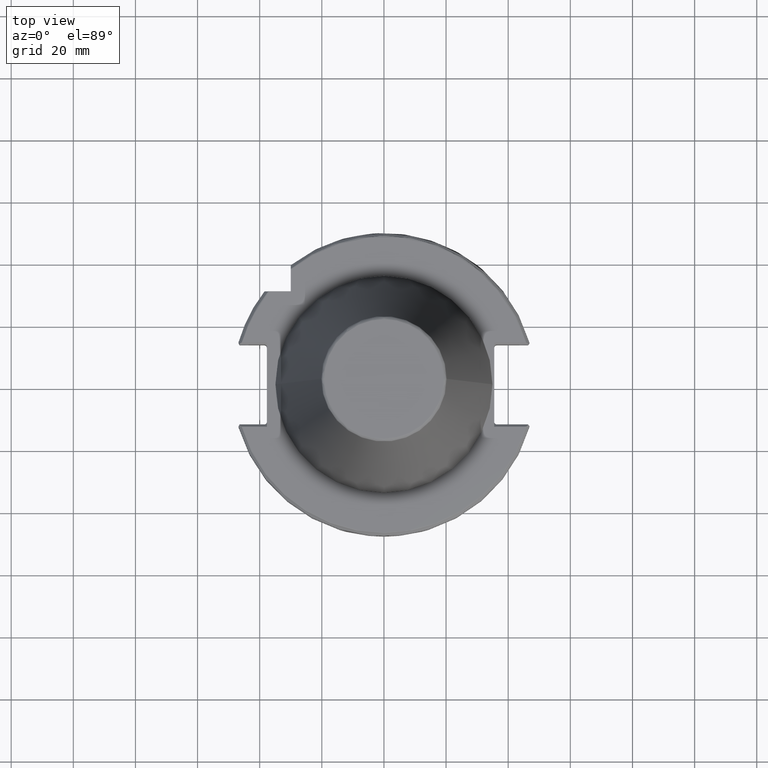
[diagram: clean part render]
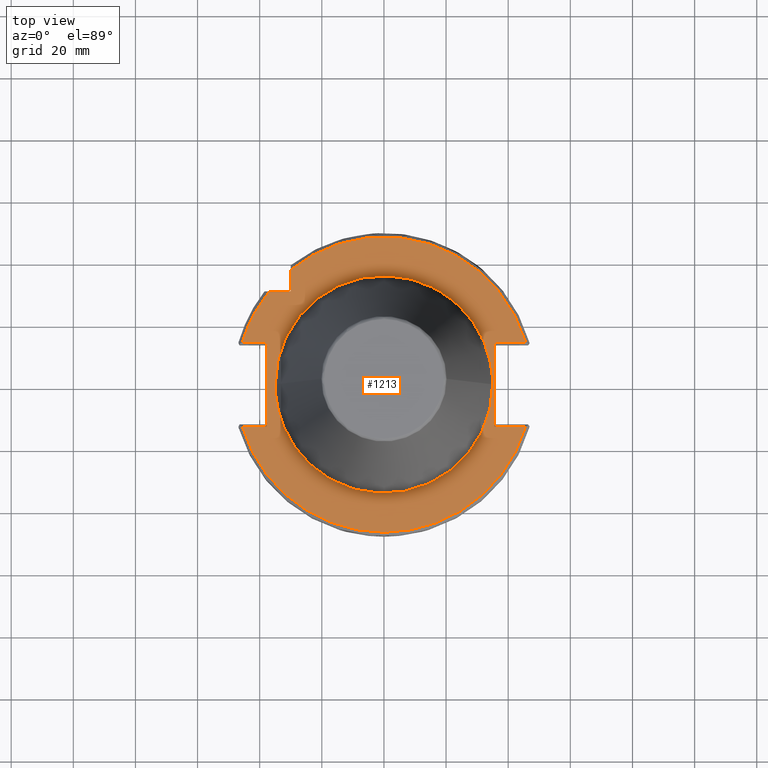
[diagram: same view with one face highlighted and labeled with its STEP entity id]
A machine part, top view. The second image highlights one B-rep face of the part: STEP entity #1213.
In plain terms, the highlighted planar face has unit normal (0, 0, 1).
Its self-contained STEP definition (entity closure, byte-faithful):
#13 = CARTESIAN_POINT ( 'NONE',  ( 41.62363868093621700, 23.05949703013546800, -3.200000000000000600 ) ) ;
#24 = CARTESIAN_POINT ( 'NONE',  ( -19.37298536406367300, 29.15725134932703000, -3.200000000000000200 ) ) ;
#25 = CARTESIAN_POINT ( 'NONE',  ( 41.66421627829909400, 22.98620127030809700, -3.200000000000000600 ) ) ;
#32 = CARTESIAN_POINT ( 'NONE',  ( 41.75843290704081300, 22.81495435035236200, -3.200000000000000200 ) ) ;
#33 = CARTESIAN_POINT ( 'NONE',  ( 0.0000000000000000000, -13.55000004757112300, -3.200000000000000200 ) ) ;
#40 = CARTESIAN_POINT ( 'NONE',  ( 41.94500843743771400, 22.47156658900674100, -3.199999999999999700 ) ) ;
#46 = CARTESIAN_POINT ( 'NONE',  ( 42.31072858988532900, 21.78121538057900300, -3.200000000000001500 ) ) ;
#60 = ORIENTED_EDGE ( 'NONE', *, *, #4514, .T. ) ;
#68 = EDGE_LOOP ( 'NONE', ( #268, #184, #118, #135, #1236, #506, #60, #5718, #5442, #5255, #2811, #3457 ) ) ;
#80 = DIRECTION ( 'NONE',  ( -1.000000000000000000, -0.0000000000000000000, -0.0000000000000000000 ) ) ;
#92 = CARTESIAN_POINT ( 'NONE',  ( -18.52382549694812000, 29.70977223538831800, -3.200000000000001100 ) ) ;
#101 = CARTESIAN_POINT ( 'NONE',  ( -17.50618989577709400, 30.31064192505619900, -3.200000000000000200 ) ) ;
#108 = CARTESIAN_POINT ( 'NONE',  ( -16.99063482280752500, 30.60014226720589600, -3.199999999999999700 ) ) ;
#118 = ORIENTED_EDGE ( 'NONE', *, *, #1674, .T. ) ;
#119 = CARTESIAN_POINT ( 'NONE',  ( -16.73117296822673000, 30.74215881260968800, -3.200000000000000200 ) ) ;
#125 = CARTESIAN_POINT ( 'NONE',  ( -16.61961410524295600, 30.80243726942466500, -3.200000000000000600 ) ) ;
#131 = CARTESIAN_POINT ( 'NONE',  ( -16.54516132429681400, 30.84249273465030000, -3.199999999999998800 ) ) ;
#135 = ORIENTED_EDGE ( 'NONE', *, *, #3902, .T. ) ;
#146 = CARTESIAN_POINT ( 'NONE',  ( -16.50898917704265400, 30.86187170893204600, -3.200000000000000200 ) ) ;
#147 = CARTESIAN_POINT ( 'NONE',  ( 43.01244526139557700, 20.38621022077731500, -3.200000000000000200 ) ) ;
#152 = CARTESIAN_POINT ( 'NONE',  ( 7.985711164626440700, 46.90962060088870800, -3.200000000000000200 ) ) ;
#155 = EDGE_CURVE ( 'NONE', #1341, #2748, #2571, .T. ) ;
#160 = LINE ( 'NONE', #1090, #203 ) ;
#161 = CARTESIAN_POINT ( 'NONE',  ( -15.85617316087687300, 31.21005265237780800, -3.200000000000000200 ) ) ;
#167 = CARTESIAN_POINT ( 'NONE',  ( -14.92144398632457800, 31.67336350701679100, -3.199999999999999700 ) ) ;
#173 = CARTESIAN_POINT ( 'NONE',  ( 8.378441475924111300, 46.84108032238399500, -3.200000000000000600 ) ) ;
#178 = CARTESIAN_POINT ( 'NONE',  ( -13.24552908015550300, 32.39767644536331700, -3.200000000000000200 ) ) ;
#179 = CARTESIAN_POINT ( 'NONE',  ( 43.56296189403016700, 19.16597252446813500, -3.199999999999999700 ) ) ;
#183 = CARTESIAN_POINT ( 'NONE',  ( 8.769432225016016600, 46.77059666911814900, -3.200000000000000600 ) ) ;
#184 = ORIENTED_EDGE ( 'NONE', *, *, #3365, .T. ) ;
#187 = CARTESIAN_POINT ( 'NONE',  ( -13.00324560422401100, 32.49497250389339300, -3.199999999999999700 ) ) ;
#190 = CARTESIAN_POINT ( 'NONE',  ( -13.80799012989782100, 32.16447509041653800, -3.199999999999999700 ) ) ;
#199 = CARTESIAN_POINT ( 'NONE',  ( -12.84145023353021200, 32.55924823640140200, -3.199999999999999700 ) ) ;
#200 = CARTESIAN_POINT ( 'NONE',  ( 43.91808779559259100, 18.31582123879788400, -3.200000000000001500 ) ) ;
#203 = VECTOR ( 'NONE', #1098, 1000.000000000000000 ) ;
#216 = CARTESIAN_POINT ( 'NONE',  ( 8.117523699751421500, 46.88699519774866100, -3.200000000000000200 ) ) ;
#220 = CARTESIAN_POINT ( 'NONE',  ( -12.76223322521365200, 32.59038563603287000, -3.199999999999999700 ) ) ;
#228 = CARTESIAN_POINT ( 'NONE',  ( -12.01534174283572300, 32.88068849400896500, -3.200000000000000200 ) ) ;
#232 = CARTESIAN_POINT ( 'NONE',  ( 43.92775962155187100, 18.29261004763765900, -3.200000000000000600 ) ) ;
#248 = CIRCLE ( 'NONE', #1804, 47.58431456673302800 ) ;
#257 = CARTESIAN_POINT ( 'NONE',  ( -11.00943150447449700, 33.23677815936358800, -3.200000000000000600 ) ) ;
#258 = CARTESIAN_POINT ( 'NONE',  ( 43.94813018742861000, 18.24361451578367600, -3.200000000000000200 ) ) ;
#268 = ORIENTED_EDGE ( 'NONE', *, *, #4544, .T. ) ;
#278 = CARTESIAN_POINT ( 'NONE',  ( 43.97862338520471300, 18.17009903748073900, -3.199999999999998800 ) ) ;
#289 = CARTESIAN_POINT ( 'NONE',  ( -9.818273434802790700, 33.59799968137041800, -3.200000000000000600 ) ) ;
#303 = CARTESIAN_POINT ( 'NONE',  ( -9.218295368737687000, 33.76505633714711500, -3.200000000000000200 ) ) ;
#312 = CARTESIAN_POINT ( 'NONE',  ( -8.960219262303533900, 33.83374759564566900, -3.200000000000000200 ) ) ;
#315 = ORIENTED_EDGE ( 'NONE', *, *, #4451, .T. ) ;
#318 = VECTOR ( 'NONE', #1602, 1000.000000000000000 ) ;
#327 = AXIS2_PLACEMENT_3D ( 'NONE', #4574, #4561, #4551 ) ;
#328 = CARTESIAN_POINT ( 'NONE',  ( -8.787959047003179000, 33.87889633439581900, -3.200000000000000200 ) ) ;
#330 = CARTESIAN_POINT ( 'NONE',  ( 44.04933562274287300, 17.99840765778717600, -3.199999999999999700 ) ) ;
#333 = CARTESIAN_POINT ( 'NONE',  ( 9.679042566727417800, 46.59485542996585400, -3.199999999999999700 ) ) ;
#337 = CARTESIAN_POINT ( 'NONE',  ( -8.703018802379707700, 33.90081917788163000, -3.200000000000000200 ) ) ;
#339 = ORIENTED_EDGE ( 'NONE', *, *, #1085, .T. ) ;
#341 = CARTESIAN_POINT ( 'NONE',  ( 44.18900586872788200, 17.65440384378616700, -3.200000000000000200 ) ) ;
#347 = CARTESIAN_POINT ( 'NONE',  ( 11.48745762547110200, 46.19825542553333300, -3.200000000000001500 ) ) ;
#349 = CARTESIAN_POINT ( 'NONE',  ( -7.914311117640302500, 34.10113888190058900, -3.199999999999999700 ) ) ;
#354 = CARTESIAN_POINT ( 'NONE',  ( -6.856329999281937800, 34.33525404325404700, -3.199999999999999300 ) ) ;
#361 = CARTESIAN_POINT ( 'NONE',  ( 44.46132944433279000, 16.96391199732858700, -3.199999999999999300 ) ) ;
#372 = CARTESIAN_POINT ( 'NONE',  ( -5.610869668461955200, 34.55067728782403700, -3.199999999999999700 ) ) ;
#373 = CARTESIAN_POINT ( 'NONE',  ( 44.97790893008208000, 15.57299143059133500, -3.200000000000000200 ) ) ;
#385 = CARTESIAN_POINT ( 'NONE',  ( -5.074711878238697500, 34.63063486899495300, -3.200000000000000200 ) ) ;
#389 = CARTESIAN_POINT ( 'NONE',  ( 16.05739742176754700, 44.84326807718499500, -3.200000000000000200 ) ) ;
#396 = CARTESIAN_POINT ( 'NONE',  ( 13.01900374780159300, 45.78096823408611700, -3.199999999999999700 ) ) ;
#399 = CARTESIAN_POINT ( 'NONE',  ( -4.716742445419919600, 34.68119177499736600, -3.199999999999999700 ) ) ;
#417 = CARTESIAN_POINT ( 'NONE',  ( -4.538803964306005400, 34.70493152906580300, -3.199999999999999300 ) ) ;
#425 = CARTESIAN_POINT ( 'NONE',  ( -2.911358167918262700, 34.90918589696546800, -3.199999999999999700 ) ) ;
#428 = CARTESIAN_POINT ( 'NONE',  ( -25.75564214666730600, 23.69911887263792100, -3.200000000000000200 ) ) ;
#429 = CARTESIAN_POINT ( 'NONE',  ( 18.03412014108282300, 44.08554548650428700, -3.200000000000000600 ) ) ;
#435 = CARTESIAN_POINT ( 'NONE',  ( -1.457967382327358000, 34.99997708875132200, -3.199999999999999300 ) ) ;
#439 = CARTESIAN_POINT ( 'NONE',  ( 0.7289836911637025400, 35.00001145515341200, -3.200000000000000200 ) ) ;
#470 = CARTESIAN_POINT ( 'NONE',  ( 0.0000000000000000000, 13.55000004757113400, -3.199999999999999700 ) ) ;
#471 = CARTESIAN_POINT ( 'NONE',  ( 1.820468541235970500, 34.96597335414725200, -3.200000000000000600 ) ) ;
#475 = CARTESIAN_POINT ( 'NONE',  ( -25.73148091877785900, 23.72535315098142700, -3.200000000000000600 ) ) ;
#484 = CARTESIAN_POINT ( 'NONE',  ( 3.090383831308835600, 34.86666548894404400, -3.199999999999998800 ) ) ;
#486 = EDGE_LOOP ( 'NONE', ( #339, #315 ) ) ;
#506 = ORIENTED_EDGE ( 'NONE', *, *, #3471, .F. ) ;
#507 = CARTESIAN_POINT ( 'NONE',  ( 3.633886733837599100, 34.81133424370784000, -3.199999999999998800 ) ) ;
#513 = CARTESIAN_POINT ( 'NONE',  ( 20.19943295891753000, 43.08503050393927900, -3.200000000000000200 ) ) ;
#528 = CARTESIAN_POINT ( 'NONE',  ( 3.996056111634009000, 34.77160880653312300, -3.200000000000000200 ) ) ;
#535 = CARTESIAN_POINT ( 'NONE',  ( 20.43496529974183300, 42.97381234228294000, -3.200000000000000200 ) ) ;
#552 = CARTESIAN_POINT ( 'NONE',  ( 21.61430608650645600, 42.39785015648780600, -3.199999999999999700 ) ) ;
#570 = CARTESIAN_POINT ( 'NONE',  ( 4.178550400741539900, 34.75013984167546300, -3.199999999999999300 ) ) ;
#610 = CARTESIAN_POINT ( 'NONE',  ( 5.075681665015101100, 34.63757292746039700, -3.199999999999999300 ) ) ;
#615 = CARTESIAN_POINT ( 'NONE',  ( 20.90795485422230700, 42.74571271975505500, -3.200000000000000600 ) ) ;
#619 = CARTESIAN_POINT ( 'NONE',  ( 6.146136418778011600, 34.46946408692387100, -3.199999999999999700 ) ) ;
#624 = CARTESIAN_POINT ( 'NONE',  ( 24.59683394049022100, 40.74761747877650500, -3.200000000000000200 ) ) ;
#630 = CARTESIAN_POINT ( 'NONE',  ( 7.384320462278691500, 34.21553715521068300, -3.200000000000000200 ) ) ;
#634 = CARTESIAN_POINT ( 'NONE',  ( 23.24052726578015900, 41.54617893586928500, -3.200000000000000200 ) ) ;
#650 = CARTESIAN_POINT ( 'NONE',  ( 8.264351275038885400, 34.01042150979041200, -3.200000000000000600 ) ) ;
#697 = CARTESIAN_POINT ( 'NONE',  ( -45.61430141082634300, 13.55000000852340500, -3.199999999992751800 ) ) ;
#707 = CARTESIAN_POINT ( 'NONE',  ( 8.439963300790246600, 33.96726528727337100, -3.200000000000000600 ) ) ;
#720 = CARTESIAN_POINT ( 'NONE',  ( 8.000742525056663700, 34.07412370158226600, -3.200000000000000200 ) ) ;
#731 = CARTESIAN_POINT ( 'NONE',  ( 8.529087676931197800, 33.94499218415481300, -3.200000000000000200 ) ) ;
#745 = CARTESIAN_POINT ( 'NONE',  ( 9.305760121228365400, 33.74775483171516300, -3.200000000000001500 ) ) ;
#753 = CARTESIAN_POINT ( 'NONE',  ( 10.33152433420239500, 33.45370883671815700, -3.199999999999999700 ) ) ;
#767 = VERTEX_POINT ( 'NONE', #3796 ) ;
#792 = CARTESIAN_POINT ( 'NONE',  ( 11.51110091868328800, 33.05629517366939000, -3.200000000000000600 ) ) ;
#816 = CARTESIAN_POINT ( 'NONE',  ( 45.37257534850625300, 14.36373916112159300, -3.200000000000000600 ) ) ;
#829 = VECTOR ( 'NONE', #2492, 1000.000000000000000 ) ;
#830 = CARTESIAN_POINT ( 'NONE',  ( 12.09660212825987600, 32.84399834159025000, -3.200000000000001100 ) ) ;
#845 = CARTESIAN_POINT ( 'NONE',  ( 12.34661255750758500, 32.75010184200891000, -3.200000000000000600 ) ) ;
#853 = DIRECTION ( 'NONE',  ( 1.000000000000000000, 0.0000000000000000000, 0.0000000000000000000 ) ) ;
#854 = CARTESIAN_POINT ( 'NONE',  ( 12.51308203021254100, 32.68685703273779100, -3.200000000000001100 ) ) ;
#863 = CARTESIAN_POINT ( 'NONE',  ( 12.59811432270201500, 32.65417277230242400, -3.200000000000000200 ) ) ;
#869 = CARTESIAN_POINT ( 'NONE',  ( 13.32829296292878300, 32.37039140385250800, -3.200000000000000600 ) ) ;
#870 = LINE ( 'NONE', #2329, #829 ) ;
#875 = EDGE_CURVE ( 'NONE', #3117, #3220, #1815, .T. ) ;
#888 = CARTESIAN_POINT ( 'NONE',  ( 14.28899659210346800, 31.96366775385566700, -3.200000000000000600 ) ) ;
#892 = CARTESIAN_POINT ( 'NONE',  ( -25.80622769414745900, 23.64402521524389300, -3.200000000000001100 ) ) ;
#897 = CARTESIAN_POINT ( 'NONE',  ( 15.38729868333384200, 31.43954696774800400, -3.200000000000001100 ) ) ;
#903 = CARTESIAN_POINT ( 'NONE',  ( -23.82952124811812000, 25.63838253716929600, -3.200000000000001100 ) ) ;
#909 = CARTESIAN_POINT ( 'NONE',  ( -30.15378598764190300, 17.77022809622862100, -3.199999999999999700 ) ) ;
#932 = CARTESIAN_POINT ( 'NONE',  ( 15.93082002658067600, 31.16508410941634800, -3.200000000000001500 ) ) ;
#937 = CARTESIAN_POINT ( 'NONE',  ( 16.20117327261198900, 31.02475206393102200, -3.200000000000000600 ) ) ;
#948 = CARTESIAN_POINT ( 'NONE',  ( 16.31673735828424300, 30.96394534094033400, -3.200000000000001100 ) ) ;
#963 = CARTESIAN_POINT ( 'NONE',  ( 16.39371306179946300, 30.92325987721701700, -3.200000000000000200 ) ) ;
#1008 = CARTESIAN_POINT ( 'NONE',  ( 25.59526534990335400, 40.11441760910419400, -3.200000000000000600 ) ) ;
#1014 = CARTESIAN_POINT ( 'NONE',  ( 16.43329977576646400, 30.90223941075265300, -3.200000000000000200 ) ) ;
#1030 = CARTESIAN_POINT ( 'NONE',  ( 17.06720358129594600, 30.56416942324824900, -3.200000000000000200 ) ) ;
#1036 = CARTESIAN_POINT ( 'NONE',  ( 17.94694476450673900, 30.06176791647546400, -3.200000000000001100 ) ) ;
#1037 = CARTESIAN_POINT ( 'NONE',  ( 18.94674126462221900, 29.43166192222260200, -3.200000000000001500 ) ) ;
#1048 = CARTESIAN_POINT ( 'NONE',  ( 19.43999746127234500, 29.10561619934171100, -3.199999999999999300 ) ) ;
#1056 = CARTESIAN_POINT ( 'NONE',  ( 19.68496504624549100, 28.93984515646260600, -3.200000000000000200 ) ) ;
#1064 = CARTESIAN_POINT ( 'NONE',  ( 19.78959532980145000, 28.86821152777760300, -3.200000000000000600 ) ) ;
#1069 = CARTESIAN_POINT ( 'NONE',  ( 19.85926978010770900, 28.82032490953814400, -3.200000000000001500 ) ) ;
#1075 = CARTESIAN_POINT ( 'NONE',  ( 19.89530000426547200, 28.79546248971578800, -3.200000000000000200 ) ) ;
#1081 = CARTESIAN_POINT ( 'NONE',  ( 20.46523551114813300, 28.40071403916320800, -3.200000000000000200 ) ) ;
#1084 = CARTESIAN_POINT ( 'NONE',  ( 21.25315205368244500, 27.82177070167195200, -3.200000000000001100 ) ) ;
#1085 = EDGE_CURVE ( 'NONE', #4932, #767, #2218, .T. ) ;
#1090 = CARTESIAN_POINT ( 'NONE',  ( 35.50000000000000700, 0.0000000000000000000, -3.200000000000000200 ) ) ;
#1094 = CARTESIAN_POINT ( 'NONE',  ( 22.14316601122691700, 27.10844684515831600, -3.200000000000000200 ) ) ;
#1098 = DIRECTION ( 'NONE',  ( 0.0000000000000000000, 1.000000000000000000, 0.0000000000000000000 ) ) ;
#1118 = CARTESIAN_POINT ( 'NONE',  ( 22.58086748781271800, 26.74231242620801700, -3.200000000000000600 ) ) ;
#1137 = CARTESIAN_POINT ( 'NONE',  ( 22.79789185055904700, 26.55687709405948000, -3.200000000000000600 ) ) ;
#1142 = CARTESIAN_POINT ( 'NONE',  ( 22.89051092554746700, 26.47689735399442400, -3.200000000000000600 ) ) ;
#1149 = CARTESIAN_POINT ( 'NONE',  ( -1.387778780781445700E-014, -7.245037872883414400E-010, -3.200000000457333500 ) ) ;
#1152 = CARTESIAN_POINT ( 'NONE',  ( 22.95217000527563300, 26.42346475953801400, -3.200000000000001100 ) ) ;
#1156 = DIRECTION ( 'NONE',  ( 0.0000000000000000000, 7.516049995020898900E-018, 1.000000000000000000 ) ) ;
#1170 = DIRECTION ( 'NONE',  ( 0.0000000000000000000, -1.000000000000000000, 9.113945907237995200E-018 ) ) ;
#1176 = CARTESIAN_POINT ( 'NONE',  ( 22.98420983199494200, 26.39559791062477600, -3.200000000000000200 ) ) ;
#1185 = CARTESIAN_POINT ( 'NONE',  ( 35.50000000000000700, 13.55000002378556600, -3.200000000000000200 ) ) ;
#1189 = CARTESIAN_POINT ( 'NONE',  ( 23.48551939141046000, 25.95810465885892500, -3.199999999999999700 ) ) ;
#1200 = CARTESIAN_POINT ( 'NONE',  ( 24.17578738808610700, 25.32231531127911600, -3.200000000000000600 ) ) ;
#1202 = CARTESIAN_POINT ( 'NONE',  ( 25.91902855675391500, 39.90599055798816200, -3.200000000000000600 ) ) ;
#1213 = ADVANCED_FACE ( 'NONE', ( #1454, #1438 ), #2626, .T. ) ;
#1221 = VERTEX_POINT ( 'NONE', #2249 ) ;
#1224 = CARTESIAN_POINT ( 'NONE',  ( 24.95053954532422900, 24.54879539500467800, -3.200000000000000200 ) ) ;
#1232 = CARTESIAN_POINT ( 'NONE',  ( 25.33027549755575000, 24.15409401750959300, -3.199999999999999300 ) ) ;
#1235 = CARTESIAN_POINT ( 'NONE',  ( 45.61430140343971100, 13.55000003102655400, -3.199999999992751800 ) ) ;
#1236 = ORIENTED_EDGE ( 'NONE', *, *, #875, .F. ) ;
#1246 = CARTESIAN_POINT ( 'NONE',  ( 25.67954656389532500, 23.78155268335402900, -3.200000000000001100 ) ) ;
#1251 = CARTESIAN_POINT ( 'NONE',  ( 26.11086152500024200, 23.31482919386077400, -3.200000000000000200 ) ) ;
#1262 = CARTESIAN_POINT ( 'NONE',  ( 26.70220439049876400, 22.64111502384548300, -3.199999999999999700 ) ) ;
#1271 = CARTESIAN_POINT ( 'NONE',  ( -19.96356563845824900, 28.74817890783056000, -3.200000000000000200 ) ) ;
#1272 = CARTESIAN_POINT ( 'NONE',  ( 27.36135274625727100, 21.82919692357832600, -3.200000000000000200 ) ) ;
#1275 = CARTESIAN_POINT ( 'NONE',  ( 26.24342500577995100, 39.69468338505869600, -3.199999999999999300 ) ) ;
#1280 = CARTESIAN_POINT ( 'NONE',  ( 27.84226016445560600, 21.20891912045637900, -3.199999999999999700 ) ) ;
#1287 = CARTESIAN_POINT ( 'NONE',  ( 27.91000023501107600, 21.11949806087314100, -3.200000000000000600 ) ) ;
#1298 = CARTESIAN_POINT ( 'NONE',  ( 27.68323901063908800, 21.41675831463242100, -3.199999999999999300 ) ) ;
#1303 = CARTESIAN_POINT ( 'NONE',  ( 25.70214384842684700, 40.04601620516536500, -3.199999999999999300 ) ) ;
#1308 = CARTESIAN_POINT ( 'NONE',  ( -25.88196744837612300, 23.56127055956355000, -3.200000000000000600 ) ) ;
#1321 = CARTESIAN_POINT ( 'NONE',  ( -24.62475478256927300, 24.88593480698460400, -3.200000000000000600 ) ) ;
#1323 = CARTESIAN_POINT ( 'NONE',  ( 27.95506875926828600, 21.05980688354606700, -3.200000000000001100 ) ) ;
#1332 = VECTOR ( 'NONE', #3409, 1000.000000000000000 ) ;
#1333 = CARTESIAN_POINT ( 'NONE',  ( 27.97866468699919200, 21.02844620245998900, -3.200000000000000200 ) ) ;
#1341 = VERTEX_POINT ( 'NONE', #5361 ) ;
#1352 = CARTESIAN_POINT ( 'NONE',  ( 28.34136499706390900, 20.54486075743781400, -3.200000000000000600 ) ) ;
#1360 = CARTESIAN_POINT ( 'NONE',  ( -45.61430140139278000, -13.55000002355733800, -3.200000000456891100 ) ) ;
#1398 = CARTESIAN_POINT ( 'NONE',  ( 28.83626114890018900, 19.85039059865765100, -3.200000000000000600 ) ) ;
#1404 = CARTESIAN_POINT ( 'NONE',  ( 26.99383575925534700, 39.19275239974406600, -3.199999999999998800 ) ) ;
#1408 = CARTESIAN_POINT ( 'NONE',  ( 29.38362513943937100, 19.01959314678011700, -3.200000000000001100 ) ) ;
#1416 = CARTESIAN_POINT ( 'NONE',  ( 28.46860008919841800, 38.15336676853181800, -3.200000000000001500 ) ) ;
#1419 = CARTESIAN_POINT ( 'NONE',  ( 29.64980342139147900, 18.59904885418284700, -3.200000000000001100 ) ) ;
#1438 = FACE_OUTER_BOUND ( 'NONE', #68, .T. ) ;
#1440 = CARTESIAN_POINT ( 'NONE',  ( 29.78101663403816300, 18.38749031621957600, -3.200000000000000600 ) ) ;
#1446 = CARTESIAN_POINT ( 'NONE',  ( 29.83684888338759200, 18.29654671602146700, -3.200000000000000200 ) ) ;
#1454 = FACE_BOUND ( 'NONE', #486, .T. ) ;
#1455 = CARTESIAN_POINT ( 'NONE',  ( 29.87398105303344300, 18.23585639247679800, -3.200000000000000200 ) ) ;
#1461 = CARTESIAN_POINT ( 'NONE',  ( 29.89347468366137100, 18.20388067596067900, -3.200000000000000200 ) ) ;
#1464 = CARTESIAN_POINT ( 'NONE',  ( 30.19105193399448700, 17.71417030945400800, -3.200000000000000200 ) ) ;
#1469 = CARTESIAN_POINT ( 'NONE',  ( 30.59481832973901300, 17.01374296215141200, -3.199999999999999300 ) ) ;
#1476 = CARTESIAN_POINT ( 'NONE',  ( 31.03727946356312400, 16.18070253604512500, -3.200000000000000200 ) ) ;
#1482 = CARTESIAN_POINT ( 'NONE',  ( 31.25136011517231400, 15.76021352609532600, -3.199999999999999300 ) ) ;
#1486 = CARTESIAN_POINT ( 'NONE',  ( 29.68801435427904800, 37.20156709506459700, -3.199999999999999700 ) ) ;
#1490 = CARTESIAN_POINT ( 'NONE',  ( 31.35661296215124600, 15.54897682189629600, -3.199999999999999300 ) ) ;
#1495 = CARTESIAN_POINT ( 'NONE',  ( 31.40133829396527100, 15.45823419169153600, -3.200000000000000200 ) ) ;
#1512 = CARTESIAN_POINT ( 'NONE',  ( 31.43107006380196800, 15.39769185730625600, -3.200000000000000200 ) ) ;
#1532 = VERTEX_POINT ( 'NONE', #4416 ) ;
#1543 = CARTESIAN_POINT ( 'NONE',  ( 30.53067222018103200, 36.49861841064855400, -3.200000000000000600 ) ) ;
#1547 = CARTESIAN_POINT ( 'NONE',  ( 31.44671017161181900, 15.36572167742252400, -3.199999999999999700 ) ) ;
#1561 = CARTESIAN_POINT ( 'NONE',  ( 31.68409791606565000, 14.87879023755233700, -3.200000000000000200 ) ) ;
#1565 = CARTESIAN_POINT ( 'NONE',  ( 30.57768129983293200, 36.45924135312857600, -3.199999999999999300 ) ) ;
#1571 = CARTESIAN_POINT ( 'NONE',  ( 32.00396210261843800, 14.18458365793240700, -3.200000000000000200 ) ) ;
#1580 = CARTESIAN_POINT ( 'NONE',  ( 32.35041194474685300, 13.36282155411242600, -3.200000000000000200 ) ) ;
#1590 = VECTOR ( 'NONE', #3764, 1000.000000000000000 ) ;
#1591 = CARTESIAN_POINT ( 'NONE',  ( 32.51695560526527400, 12.94897689530326400, -3.200000000000001100 ) ) ;
#1592 = CARTESIAN_POINT ( 'NONE',  ( -1.387778780781445700E-014, -47.58431456745752500, -3.200000000457333000 ) ) ;
#1599 = CARTESIAN_POINT ( 'NONE',  ( 32.59855712038805100, 12.74131366417389300, -3.200000000000000200 ) ) ;
#1601 = CARTESIAN_POINT ( 'NONE',  ( 31.15293276325594400, 35.97046033440435100, -3.200000000000000200 ) ) ;
#1602 = DIRECTION ( 'NONE',  ( -1.000000000000000000, -0.0000000000000000000, -0.0000000000000000000 ) ) ;
#1608 = CARTESIAN_POINT ( 'NONE',  ( 32.63317127362569200, 12.65215637189169900, -3.200000000000000600 ) ) ;
#1609 = CARTESIAN_POINT ( 'NONE',  ( 0.0000000000000000000, -13.55000004757112300, -3.200000000000000200 ) ) ;
#1612 = CARTESIAN_POINT ( 'NONE',  ( 30.67400063171059400, 36.37824381353092200, -3.199999999999999300 ) ) ;
#1616 = CARTESIAN_POINT ( 'NONE',  ( 32.65616783696810900, 12.59268289600238900, -3.200000000000000200 ) ) ;
#1624 = CARTESIAN_POINT ( 'NONE',  ( 31.81513473485069500, 35.39085144885462600, -3.200000000000000600 ) ) ;
#1628 = CARTESIAN_POINT ( 'NONE',  ( 32.66828117669182800, 12.56122118987488200, -3.200000000000000600 ) ) ;
#1636 = CARTESIAN_POINT ( 'NONE',  ( 33.09555408652941800, 11.40570057945026300, -3.200000000000000200 ) ) ;
#1648 = CARTESIAN_POINT ( 'NONE',  ( 32.85126773840098500, 12.08412143754423200, -3.200000000000000200 ) ) ;
#1657 = CARTESIAN_POINT ( 'NONE',  ( 33.35597148866185800, 10.60569011184602000, -3.200000000000000200 ) ) ;
#1664 = CARTESIAN_POINT ( 'NONE',  ( 33.48003435539035200, 10.20355501142028800, -3.199999999999999300 ) ) ;
#1667 = CARTESIAN_POINT ( 'NONE',  ( 33.54052933017022300, 10.00195499455148600, -3.200000000000000200 ) ) ;
#1674 = EDGE_CURVE ( 'NONE', #1532, #5469, #870, .T. ) ;
#1678 = CARTESIAN_POINT ( 'NONE',  ( 33.57039270291405600, 9.901021869453121100, -3.200000000000001100 ) ) ;
#1686 = CARTESIAN_POINT ( 'NONE',  ( -43.92049889877726100, 18.31414723396747800, -3.200000000000000600 ) ) ;
#1687 = CARTESIAN_POINT ( 'NONE',  ( 33.58310898095152900, 9.857736290840106700, -3.200000000000001500 ) ) ;
#1691 = CARTESIAN_POINT ( 'NONE',  ( -26.05772357263551700, 23.36737717585109700, -3.199999999999999700 ) ) ;
#1705 = CARTESIAN_POINT ( 'NONE',  ( 30.81822177199389800, 36.25647694466940900, -3.200000000000000200 ) ) ;
#1710 = CARTESIAN_POINT ( 'NONE',  ( -30.03298294996060100, 17.97297357790915500, -3.200000000000000600 ) ) ;
#1714 = B_SPLINE_CURVE_WITH_KNOTS ( 'NONE', 3,
 ( #5218, #5095, #4841, #4814, #4734, #2635, #2481, #2457, #2226, #1850, #1845, #1836, #1686, #4795, #4822, #2478 ),
 .UNSPECIFIED., .F., .F.,
 ( 4, 1, 2, 2, 2, 1, 2, 2, 4 ),
 ( 0.0000000000000000000, 0.1250000000000008600, 0.1875000000000009400, 0.2500000000000010500, 0.5000000000000006700, 0.6250000000000005600, 0.6875000000000004400, 0.7500000000000002200, 1.000000000000000000 ),
 .UNSPECIFIED. ) ;
#1722 = CARTESIAN_POINT ( 'NONE',  ( -29.78101663402226200, -18.38749031623948200, -3.199999999999999700 ) ) ;
#1728 = CARTESIAN_POINT ( 'NONE',  ( -29.64980342136178800, -18.59904885422000100, -3.199999999999999700 ) ) ;
#1733 = CARTESIAN_POINT ( 'NONE',  ( -26.40535594539095500, 22.97639365992607500, -3.200000000000001100 ) ) ;
#1735 = CARTESIAN_POINT ( 'NONE',  ( 41.58360810720670700, 23.13160943124370300, -3.200000000000000600 ) ) ;
#1740 = CARTESIAN_POINT ( 'NONE',  ( 33.59156820846953200, 9.828872899542670200, -3.200000000000000600 ) ) ;
#1746 = CARTESIAN_POINT ( 'NONE',  ( -29.83684888337829500, -18.29654671603313800, -3.199999999999999700 ) ) ;
#1755 = CARTESIAN_POINT ( 'NONE',  ( 33.59614834981194800, 9.813204936402918600, -3.200000000000000600 ) ) ;
#1800 = VECTOR ( 'NONE', #5178, 1000.000000000000000 ) ;
#1804 = AXIS2_PLACEMENT_3D ( 'NONE', #1149, #1156, #1170 ) ;
#1805 = CARTESIAN_POINT ( 'NONE',  ( 33.84650556179766300, 8.954884064499452700, -3.200000000000000600 ) ) ;
#1811 = CARTESIAN_POINT ( 'NONE',  ( 34.16766791956313700, 7.676799325335107200, -3.200000000000000600 ) ) ;
#1815 = LINE ( 'NONE', #4890, #1800 ) ;
#1836 = CARTESIAN_POINT ( 'NONE',  ( -43.76773109586979900, 18.67635152318839800, -3.200000000000000600 ) ) ;
#1837 = CARTESIAN_POINT ( 'NONE',  ( 34.45731436129812400, 6.167481499897340000, -3.200000000000000600 ) ) ;
#1845 = CARTESIAN_POINT ( 'NONE',  ( -43.45496970444124000, 19.39298252638372600, -3.199999999999999300 ) ) ;
#1846 = CARTESIAN_POINT ( 'NONE',  ( 34.58087683825108600, 5.408267846408623600, -3.200000000000000200 ) ) ;
#1848 = CARTESIAN_POINT ( 'NONE',  ( 34.63734289074891800, 5.027522334471824700, -3.200000000000000200 ) ) ;
#1850 = CARTESIAN_POINT ( 'NONE',  ( -42.97274804773064000, 20.46176282069538000, -3.200000000000000600 ) ) ;
#1852 = CARTESIAN_POINT ( 'NONE',  ( 34.89971941894024400, 32.34625901411055100, -3.200000000000001100 ) ) ;
#1860 = CARTESIAN_POINT ( 'NONE',  ( 34.66424712050319100, 4.836864907205302300, -3.200000000000000200 ) ) ;
#1864 = CARTESIAN_POINT ( 'NONE',  ( 34.67736703625669000, 4.741465025747502600, -3.200000000000001100 ) ) ;
#1891 = CARTESIAN_POINT ( 'NONE',  ( 33.11065863432288100, 34.20133101767660100, -3.199999999999999700 ) ) ;
#1905 = CARTESIAN_POINT ( 'NONE',  ( 34.68291867176737500, 4.700564112017482400, -3.200000000000001500 ) ) ;
#1913 = CARTESIAN_POINT ( 'NONE',  ( 34.68660394310195000, 4.673293447253442400, -3.200000000000000200 ) ) ;
#1925 = CARTESIAN_POINT ( 'NONE',  ( 34.17159904464089200, 33.12979465938943900, -3.200000000000000600 ) ) ;
#1950 = CARTESIAN_POINT ( 'NONE',  ( 34.68865228533776700, 4.658061596938980000, -3.200000000000000600 ) ) ;
#1966 = CARTESIAN_POINT ( 'NONE',  ( 34.89675516143918800, 3.104398772274687500, -3.200000000000000200 ) ) ;
#1978 = CARTESIAN_POINT ( 'NONE',  ( 34.99999999919492700, 1.555726205916990500, -3.200000000000000200 ) ) ;
#1981 = CARTESIAN_POINT ( 'NONE',  ( 35.02222171114758700, 32.21357877552664200, -3.200000000000000200 ) ) ;
#1995 = CARTESIAN_POINT ( 'NONE',  ( 35.00000001467815700, 0.0000000000000000000, -3.200000000159716400 ) ) ;
#2002 = CARTESIAN_POINT ( 'NONE',  ( 34.93969075591592600, 32.30307464116734900, -3.200000000000001100 ) ) ;
#2020 = CARTESIAN_POINT ( 'NONE',  ( 35.14574715199816500, 32.07911381644331100, -3.200000000000000600 ) ) ;
#2087 = CARTESIAN_POINT ( 'NONE',  ( -19.99586669765432100, 28.72571873555488200, -3.200000000000001100 ) ) ;
#2103 = CARTESIAN_POINT ( 'NONE',  ( -27.08510118784834500, 22.18163963407563700, -3.199999999999999700 ) ) ;
#2114 = CARTESIAN_POINT ( 'NONE',  ( 45.61430140343971100, 13.55000003102655400, -3.199999999992751800 ) ) ;
#2115 = CARTESIAN_POINT ( 'NONE',  ( -25.27991184687969900, 24.21402171182238000, -3.199999999999999700 ) ) ;
#2120 = CARTESIAN_POINT ( 'NONE',  ( -27.64113510472020300, 21.47850133648884400, -3.200000000000000600 ) ) ;
#2121 = CARTESIAN_POINT ( 'NONE',  ( 35.43207623667115800, 31.76381412089311600, -3.200000000000000600 ) ) ;
#2131 = CARTESIAN_POINT ( 'NONE',  ( -30.85338983963567100, 16.54021281483919000, -3.199999999999998800 ) ) ;
#2154 = CARTESIAN_POINT ( 'NONE',  ( -31.22434704181033300, 15.82186992112393200, -3.200000000000000200 ) ) ;
#2218 = B_SPLINE_CURVE_WITH_KNOTS ( 'NONE', 3,
 ( #3003, #2467, #5727, #5658, #5093, #4752, #3461, #5703, #5634, #5219, #5191, #5169, #5133, #5072, #5013, #4992, #4694, #4676, #4656, #4637, #4616, #3286, #3306, #3405, #4203, #4187, #3881, #3845, #3826, #3425, #3260, #3218, #3010, #2901, #2850, #2790, #2496, #2154, #2131, #5738, #909, #1710, #4663, #4685, #5692, #4227, #3815, #3792, #3359, #2938, #2527, #2505, #2486, #2120, #2103, #1733, #1691, #1308, #892, #428, #475, #2115, #1321, #903, #5732, #5685, #4700, #4682, #4259, #4245, #4223, #3784, #2953, #2931, #2522, #2087, #1271, #24, #92, #101, #108, #119, #125, #131, #146, #161, #167, #190, #178, #187, #199, #220, #228, #257, #289, #303, #312, #328, #337, #349, #354, #372, #385, #399, #417, #425, #435, #439, #471, #484, #507, #528, #570, #610, #619, #630, #720, #650, #707, #731, #745, #753, #792, #830, #845, #854, #863, #869, #888, #897, #932, #937, #948, #963, #1014, #1030, #1036, #1037, #1048, #1056, #1064, #1069, #1075, #1081, #1084, #1094, #1118, #1137, #1142, #1152, #1176, #1189, #1200, #1224, #1232, #3444, #3458, #3486, #1246, #1251, #1262, #1272, #1298, #1280, #1287, #1323, #1333, #1352, #1398, #1408, #1419, #1440, #1446, #1455, #1461, #1464, #1469, #1476, #1482, #1490, #1495, #1512, #1547, #1561, #1571, #1580, #1591, #1599, #1608, #1616, #1628, #1648, #1636, #1657, #1664, #1667, #1678, #1687, #1740, #1755, #1805, #1811, #1837, #1846, #1848, #1860, #1864, #1905, #1913, #1950, #1966, #1978, #1995 ),
 .UNSPECIFIED., .F., .F.,
 ( 4, 1, 1, 1, 1, 1, 1, 2, 2, 1, 1, 1, 1, 1, 1, 2, 2, 1, 1, 1, 1, 2, 2, 1, 1, 1, 1, 2, 2, 1, 1, 1, 1, 2, 2, 1, 1, 1, 1, 2, 2, 1, 1, 1, 1, 2, 2, 1, 1, 1, 1, 2, 2, 1, 1, 1, 1, 2, 2, 1, 1, 1, 1, 2, 2, 1, 1, 1, 2, 2, 1, 1, 1, 2, 2, 1, 1, 2, 2, 2, 1, 1, 2, 2, 1, 1, 1, 2, 2, 1, 1, 1, 2, 2, 1, 1, 1, 1, 2, 2, 1, 1, 1, 1, 2, 2, 1, 1, 1, 1, 2, 2, 1, 1, 1, 1, 2, 2, 1, 1, 1, 1, 2, 2, 1, 1, 1, 1, 2, 2, 1, 1, 1, 1, 2, 2, 1, 1, 1, 1, 2, 2, 1, 1, 1, 1, 1, 2, 2, 1, 1, 1, 1, 1, 1, 2, 2, 4 ),
 ( 0.0000000000000000000, 0.03124999999999660000, 0.04687499999999490000, 0.05468749999999404600, 0.05859374999999365800, 0.06054687499999347100, 0.06152343749999338700, 0.06201171874999333200, 0.06249999999999326900, 0.09374999999998866200, 0.1093749999999863700, 0.1171874999999852500, 0.1210937499999846700, 0.1230468749999843600, 0.1240234374999842500, 0.1245117187499842200, 0.1249999999999841900, 0.1406249999999821000, 0.1484374999999810700, 0.1523437499999805200, 0.1542968749999802400, 0.1552734374999801300, 0.1562499999999800400, 0.1718749999999783500, 0.1796874999999775200, 0.1835937499999771600, 0.1855468749999770200, 0.1865234374999770200, 0.1874999999999770200, 0.2031249999999777100, 0.2109374999999781000, 0.2148437499999783200, 0.2167968749999783500, 0.2177734374999783800, 0.2187499999999784100, 0.2343749999999798200, 0.2421874999999805400, 0.2460937499999808800, 0.2480468749999810700, 0.2490234374999811800, 0.2499999999999812900, 0.2656249999999827900, 0.2734374999999835100, 0.2773437499999838500, 0.2792968749999841200, 0.2802734374999842300, 0.2812499999999843500, 0.2968749999999859600, 0.3046874999999867900, 0.3085937499999871800, 0.3105468749999873400, 0.3115234374999875100, 0.3124999999999876800, 0.3281249999999901700, 0.3359374999999914500, 0.3398437499999920100, 0.3417968749999922800, 0.3427734374999923900, 0.3437499999999925100, 0.3593749999999947300, 0.3671874999999957800, 0.3710937499999963400, 0.3730468749999965600, 0.3740234374999966100, 0.3749999999999966700, 0.3906249999999980000, 0.3984374999999986700, 0.4023437499999989500, 0.4042968749999991100, 0.4062499999999992200, 0.4218750000000008300, 0.4296875000000016700, 0.4335937500000020000, 0.4355468750000021600, 0.4375000000000023300, 0.4531250000000033300, 0.4609375000000038300, 0.4648437500000040500, 0.4687500000000042700, 0.5000000000000061100, 0.5156250000000071100, 0.5234375000000075500, 0.5273437500000077700, 0.5312500000000079900, 0.5468750000000088800, 0.5546875000000093300, 0.5585937500000096600, 0.5605468750000097700, 0.5625000000000098800, 0.5781250000000108800, 0.5859375000000115500, 0.5898437500000117700, 0.5917968750000118800, 0.5937500000000119900, 0.6093750000000132100, 0.6171875000000137700, 0.6210937500000141000, 0.6230468750000143200, 0.6240234375000144300, 0.6250000000000145400, 0.6406250000000171000, 0.6484375000000184300, 0.6523437500000191000, 0.6542968750000194300, 0.6552734375000195400, 0.6562500000000196500, 0.6718750000000216500, 0.6796875000000225400, 0.6835937500000229800, 0.6855468750000232000, 0.6865234375000233100, 0.6875000000000234300, 0.7031250000000253100, 0.7109375000000262000, 0.7148437500000266500, 0.7167968750000268700, 0.7177734375000269800, 0.7187500000000270900, 0.7343750000000280900, 0.7421875000000287500, 0.7460937500000289800, 0.7480468750000290900, 0.7490234375000290900, 0.7500000000000290900, 0.7656250000000288700, 0.7734375000000287500, 0.7773437500000286400, 0.7792968750000285300, 0.7802734375000285300, 0.7812500000000285300, 0.7968750000000269800, 0.8046875000000260900, 0.8085937500000257600, 0.8105468750000256500, 0.8115234375000255400, 0.8125000000000254200, 0.8281250000000248700, 0.8359375000000246500, 0.8398437500000245400, 0.8417968750000245400, 0.8427734375000244200, 0.8437500000000243100, 0.8593750000000234300, 0.8671875000000229800, 0.8710937500000227600, 0.8730468750000226500, 0.8740234375000225400, 0.8745117187500225400, 0.8750000000000224300, 0.9062500000000179900, 0.9218750000000157700, 0.9296875000000146500, 0.9335937500000141000, 0.9355468750000138800, 0.9365234375000137700, 0.9370117187500137700, 0.9375000000000136600, 1.000000000000000000 ),
 .UNSPECIFIED. ) ;
#2226 = CARTESIAN_POINT ( 'NONE',  ( -42.45128768231656100, 21.51204448356299200, -3.200000000000001100 ) ) ;
#2249 = CARTESIAN_POINT ( 'NONE',  ( -37.70000000000000300, -13.55000002042516400, -3.199999999999999700 ) ) ;
#2268 = CARTESIAN_POINT ( 'NONE',  ( -46.16167303200001000, -48.15532635000001000, -3.200000000000000200 ) ) ;
#2276 = B_SPLINE_CURVE_WITH_KNOTS ( 'NONE', 3,
 ( #4843, #4412, #4399, #4394, #4384, #4358, #4347, #4339, #4328, #4318, #4304, #4301, #4293, #4286, #4281, #4251, #4238, #4230, #4225, #4216, #4202, #4178, #4167, #4156, #4134, #4122, #4113, #4102, #4095, #4079, #4046, #4026, #4016, #4003, #3997, #3986, #3983, #3972, #3963, #3952, #3946, #3935, #3928, #3919, #3914, #3904, #3897, #3890, #3879, #3870, #3862, #3857, #3853, #3849, #3843, #3837, #3832, #3823, #3818, #3812, #3801, #3795, #3787, #3780, #3775, #3763, #3755, #3740, #3732, #3720, #3711, #3700, #3693, #3677, #3665, #3654, #3646, #3636, #3631, #3623, #3613, #3603, #3597, #3590, #3584, #3576, #3569, #3556, #3552, #3538, #3533, #3522, #3517, #3507, #3495, #3487, #3479, #3465, #3459, #3453, #3449, #3445, #3440, #3436, #5092, #5099, #5104, #3424, #3416, #3410, #3403, #3394, #3388, #3382, #3376, #3374, #3368, #3360, #3353, #3342, #3335, #3303, #3299, #3273, #3258, #3246, #3236, #3229, #3216, #3210, #3196, #3184, #3175, #3166, #3150, #3143, #3136, #3119, #3113, #3104, #3091, #3082, #3071, #3061, #3049, #3042, #3034, #3027, #3019, #3007, #3000, #2986, #2981, #2972, #2964, #2957, #2945, #2939, #2934, #2922, #2910, #2898, #2891, #2876, #2866, #2859, #2846, #2827, #2821, #2809, #1728, #1722, #1746, #2787, #2776, #2759, #2730, #2725, #2705, #2694, #2689, #2666, #2649, #2638, #2633, #2622, #2615, #2598, #2588, #2583, #2572, #2565, #2560, #2556, #2547, #2542, #2534, #2509, #2494, #2488, #2475, #2465, #2463, #2454, #2434, #2421, #2417, #5148, #5156, #5177, #2397, #2288, #2283 ),
 .UNSPECIFIED., .F., .F.,
 ( 4, 1, 1, 1, 1, 1, 1, 2, 2, 1, 1, 1, 1, 1, 1, 2, 2, 1, 1, 1, 1, 2, 2, 1, 1, 1, 1, 2, 2, 1, 1, 1, 1, 2, 2, 1, 1, 1, 1, 2, 2, 1, 1, 1, 1, 2, 2, 1, 1, 1, 1, 2, 2, 1, 1, 1, 1, 2, 2, 1, 1, 1, 1, 2, 2, 1, 1, 1, 2, 2, 1, 1, 1, 2, 2, 1, 1, 2, 2, 2, 1, 1, 2, 2, 1, 1, 1, 2, 2, 1, 1, 1, 2, 2, 1, 1, 1, 1, 2, 2, 1, 1, 1, 1, 2, 2, 1, 1, 1, 1, 2, 2, 1, 1, 1, 1, 2, 2, 1, 1, 1, 1, 2, 2, 1, 1, 1, 1, 2, 2, 1, 1, 1, 1, 2, 2, 1, 1, 1, 1, 2, 2, 1, 1, 1, 1, 1, 2, 2, 1, 1, 1, 1, 1, 1, 2, 2, 4 ),
 ( 0.0000000000000000000, 0.03124999999999542000, 0.04687499999999311700, 0.05468749999999195800, 0.05859374999999140300, 0.06054687499999111800, 0.06152343749999096600, 0.06201171874999090300, 0.06249999999999084100, 0.09374999999998670500, 0.1093749999999846200, 0.1171874999999836400, 0.1210937499999832100, 0.1230468749999829700, 0.1240234374999828700, 0.1245117187499829000, 0.1249999999999829300, 0.1406249999999817400, 0.1484374999999812100, 0.1523437499999809000, 0.1542968749999807700, 0.1552734374999807400, 0.1562499999999807100, 0.1718749999999814300, 0.1796874999999817600, 0.1835937499999819300, 0.1855468749999819900, 0.1865234374999820100, 0.1874999999999820400, 0.2031249999999822900, 0.2109374999999824300, 0.2148437499999825700, 0.2167968749999826500, 0.2177734374999827400, 0.2187499999999828200, 0.2343749999999841200, 0.2421874999999848500, 0.2460937499999852900, 0.2480468749999854800, 0.2490234374999855700, 0.2499999999999856200, 0.2656249999999872300, 0.2734374999999880700, 0.2773437499999885100, 0.2792968749999887300, 0.2802734374999889000, 0.2812499999999890600, 0.2968749999999915600, 0.3046874999999928400, 0.3085937499999933900, 0.3105468749999937800, 0.3115234374999939500, 0.3124999999999940600, 0.3281249999999962800, 0.3359374999999973400, 0.3398437499999979500, 0.3417968749999982800, 0.3427734374999983300, 0.3437499999999983900, 0.3593750000000003300, 0.3671875000000013300, 0.3710937500000017800, 0.3730468750000020500, 0.3740234375000022200, 0.3750000000000023300, 0.3906250000000037700, 0.3984375000000045000, 0.4023437500000048800, 0.4042968750000050500, 0.4062500000000051600, 0.4218750000000061100, 0.4296875000000065500, 0.4335937500000067700, 0.4355468750000068800, 0.4375000000000069900, 0.4531250000000079900, 0.4609375000000084400, 0.4648437500000087200, 0.4687500000000089400, 0.5000000000000108800, 0.5156250000000117700, 0.5234375000000123200, 0.5273437500000125500, 0.5312500000000127700, 0.5468750000000136600, 0.5546875000000142100, 0.5585937500000144300, 0.5605468750000145400, 0.5625000000000146500, 0.5781250000000155400, 0.5859375000000159900, 0.5898437500000161000, 0.5917968750000163200, 0.5937500000000164300, 0.6093750000000173200, 0.6171875000000176500, 0.6210937500000178700, 0.6230468750000179900, 0.6240234375000178700, 0.6250000000000178700, 0.6406250000000178700, 0.6484375000000178700, 0.6523437500000178700, 0.6542968750000178700, 0.6552734375000178700, 0.6562500000000178700, 0.6718750000000171000, 0.6796875000000167600, 0.6835937500000166500, 0.6855468750000164300, 0.6865234375000164300, 0.6875000000000163200, 0.7031250000000162100, 0.7109375000000161000, 0.7148437500000158800, 0.7167968750000158800, 0.7177734375000158800, 0.7187500000000157700, 0.7343750000000145400, 0.7421875000000138800, 0.7460937500000135400, 0.7480468750000134300, 0.7490234375000133200, 0.7500000000000133200, 0.7656250000000126600, 0.7734375000000123200, 0.7773437500000121000, 0.7792968750000119900, 0.7802734375000119900, 0.7812500000000119900, 0.7968750000000115500, 0.8046875000000114400, 0.8085937500000113200, 0.8105468750000111000, 0.8115234375000109900, 0.8125000000000107700, 0.8281250000000095500, 0.8359375000000089900, 0.8398437500000085500, 0.8417968750000084400, 0.8427734375000083300, 0.8437500000000081000, 0.8593750000000065500, 0.8671875000000057700, 0.8710937500000054400, 0.8730468750000053300, 0.8740234375000051100, 0.8745117187500051100, 0.8750000000000050000, 0.9062500000000034400, 0.9218750000000025500, 0.9296875000000021100, 0.9335937500000018900, 0.9355468750000017800, 0.9365234375000017800, 0.9370117187500016700, 0.9375000000000015500, 1.000000000000000000 ),
 .UNSPECIFIED. ) ;
#2283 = CARTESIAN_POINT ( 'NONE',  ( -35.00000001467815700, 0.0000000000000000000, -3.200000000159716400 ) ) ;
#2288 = CARTESIAN_POINT ( 'NONE',  ( -34.99999999919493400, -1.555726205848601900, -3.200000000000000600 ) ) ;
#2304 = EDGE_CURVE ( 'NONE', #2748, #5236, #160, .T. ) ;
#2314 = EDGE_CURVE ( 'NONE', #5251, #4519, #248, .T. ) ;
#2329 = CARTESIAN_POINT ( 'NONE',  ( -34.21303268599999800, 30.00000000000000000, -3.200000000000000200 ) ) ;
#2392 = LINE ( 'NONE', #1609, #318 ) ;
#2397 = CARTESIAN_POINT ( 'NONE',  ( -34.89675516143918800, -3.104398772206304400, -3.200000000000000200 ) ) ;
#2417 = CARTESIAN_POINT ( 'NONE',  ( -34.67736703625773500, -4.741465025743981900, -3.200000000000000600 ) ) ;
#2421 = CARTESIAN_POINT ( 'NONE',  ( -34.66424712050523700, -4.836864907198319400, -3.200000000000000600 ) ) ;
#2434 = CARTESIAN_POINT ( 'NONE',  ( -34.63734289075288300, -5.027522334458322600, -3.200000000000000600 ) ) ;
#2454 = CARTESIAN_POINT ( 'NONE',  ( -34.58087683825846200, -5.408267846383416200, -3.200000000000000200 ) ) ;
#2457 = CARTESIAN_POINT ( 'NONE',  ( -41.35604867321719500, 23.58794296737281500, -3.200000000000001100 ) ) ;
#2463 = CARTESIAN_POINT ( 'NONE',  ( -34.45731436131073600, -6.167481499854134500, -3.199999999999999700 ) ) ;
#2465 = CARTESIAN_POINT ( 'NONE',  ( -34.16766791957994800, -7.676799325277453800, -3.199999999999999700 ) ) ;
#2467 = CARTESIAN_POINT ( 'NONE',  ( -34.99999999919492700, 0.7776924362582068300, -3.200000000000001500 ) ) ;
#2475 = CARTESIAN_POINT ( 'NONE',  ( -33.84650556180727700, -8.954884064466476400, -3.199999999999999700 ) ) ;
#2478 = CARTESIAN_POINT ( 'NONE',  ( -45.61430141082634300, 13.55000000852340500, -3.199999999992751800 ) ) ;
#2481 = CARTESIAN_POINT ( 'NONE',  ( -40.55925078459874600, 24.93318313165030300, -3.200000000000000600 ) ) ;
#2486 = CARTESIAN_POINT ( 'NONE',  ( -28.02242905527067800, 20.97009366626931400, -3.200000000000001100 ) ) ;
#2488 = CARTESIAN_POINT ( 'NONE',  ( -33.59614834981182700, -9.813204936403435500, -3.200000000000001500 ) ) ;
#2492 = DIRECTION ( 'NONE',  ( -1.000000000000000000, -0.0000000000000000000, -0.0000000000000000000 ) ) ;
#2494 = CARTESIAN_POINT ( 'NONE',  ( -33.59156820846979500, -9.828872899541824600, -3.200000000000000200 ) ) ;
#2496 = CARTESIAN_POINT ( 'NONE',  ( -31.47544460125278200, 15.30677919719930500, -3.199999999999999700 ) ) ;
#2505 = CARTESIAN_POINT ( 'NONE',  ( -28.04265017809298800, 20.94304120617413300, -3.200000000000001500 ) ) ;
#2509 = CARTESIAN_POINT ( 'NONE',  ( -33.58310898095199800, -9.857736290838436900, -3.200000000000000200 ) ) ;
#2522 = CARTESIAN_POINT ( 'NONE',  ( -20.06277573072051700, 28.67902755919975600, -3.200000000000000200 ) ) ;
#2527 = CARTESIAN_POINT ( 'NONE',  ( -28.08516520866442100, 20.88599223027333500, -3.200000000000000600 ) ) ;
#2534 = CARTESIAN_POINT ( 'NONE',  ( -33.57039270291488700, -9.901021869450225700, -3.199999999999999700 ) ) ;
#2542 = CARTESIAN_POINT ( 'NONE',  ( -33.54052933017185700, -10.00195499454588500, -3.200000000000000200 ) ) ;
#2547 = CARTESIAN_POINT ( 'NONE',  ( -33.48003435539344300, -10.20355501140983600, -3.200000000000000200 ) ) ;
#2556 = CARTESIAN_POINT ( 'NONE',  ( -33.35597148866708000, -10.60569011182811700, -3.200000000000000200 ) ) ;
#2560 = CARTESIAN_POINT ( 'NONE',  ( -33.09555408653638200, -11.40570057942637300, -3.200000000000000200 ) ) ;
#2565 = CARTESIAN_POINT ( 'NONE',  ( -32.85126773840497100, -12.08412143753058600, -3.200000000000000600 ) ) ;
#2571 = LINE ( 'NONE', #33, #2623 ) ;
#2572 = CARTESIAN_POINT ( 'NONE',  ( -32.66828117669161500, -12.56122118987574200, -3.200000000000000600 ) ) ;
#2583 = CARTESIAN_POINT ( 'NONE',  ( -32.65616783697206700, -12.59268289599249100, -3.200000000000000600 ) ) ;
#2588 = CARTESIAN_POINT ( 'NONE',  ( -32.63317127363344400, -12.65215637187236700, -3.200000000000000200 ) ) ;
#2598 = CARTESIAN_POINT ( 'NONE',  ( -32.59855712040124600, -12.74131366414089000, -3.200000000000000200 ) ) ;
#2615 = CARTESIAN_POINT ( 'NONE',  ( -32.51695560528993000, -12.94897689524166200, -3.199999999999999300 ) ) ;
#2622 = CARTESIAN_POINT ( 'NONE',  ( -32.35041194478913700, -13.36282155400684100, -3.200000000000000600 ) ) ;
#2623 = VECTOR ( 'NONE', #80, 1000.000000000000000 ) ;
#2626 = PLANE ( 'NONE',  #4374 ) ;
#2632 = B_SPLINE_CURVE_WITH_KNOTS ( 'NONE', 3,
 ( #1235, #816, #373, #361, #341, #330, #278, #258, #232, #200, #179, #147, #46, #40, #32, #25, #13, #5551, #1735, #5009, #4330, #4327, #4303, #4277, #4131, #4094, #4062, #4048, #3990, #3617, #3554, #2121, #2020, #1981, #2002, #1852, #1925, #1891, #1624, #1601, #1705, #1612, #1565, #1543, #1486, #1416, #1404, #1275, #1202, #1303, #1008, #624, #634, #552, #615, #535, #513, #429, #389, #396, #347, #333, #183, #173, #216, #152, #5739, #5728, #5717, #5705, #5682, #5642, #5628, #5620, #5610, #5602, #5596, #5589, #5580, #5573, #5562, #5554, #5541, #5533, #5524, #5519, #5508, #5498, #5490, #5482, #5473, #5452, #5441, #5424, #5418, #5402, #5390, #5366, #5346, #5338, #5319, #5298, #5290, #5278, #5266, #5253, #5246, #5233, #5221, #5207, #5197, #5181, #5172, #5162, #5142, #5136, #5122, #5083, #5075, #5067 ),
 .UNSPECIFIED., .F., .F.,
 ( 4, 1, 1, 1, 1, 1, 2, 2, 1, 1, 1, 1, 1, 2, 2, 1, 1, 1, 1, 1, 2, 2, 1, 1, 1, 1, 2, 2, 1, 1, 1, 1, 2, 2, 1, 1, 1, 2, 2, 1, 1, 2, 2, 2, 1, 1, 1, 2, 2, 1, 1, 1, 1, 2, 2, 1, 1, 1, 1, 2, 2, 1, 1, 1, 1, 2, 2, 1, 1, 1, 1, 1, 2, 2, 1, 1, 1, 1, 1, 2, 2, 1, 1, 1, 1, 1, 2, 2, 4 ),
 ( 0.0000000000000000000, 0.03125000000000806300, 0.04687500000001196300, 0.05468750000001395400, 0.05859375000001495300, 0.06054687500001544600, 0.06152343750001559200, 0.06250000000001572400, 0.09375000000001955400, 0.1093750000000215100, 0.1171875000000225500, 0.1210937500000230600, 0.1230468750000233400, 0.1240234375000234800, 0.1250000000000236200, 0.1562500000000283400, 0.1718750000000307300, 0.1796875000000320000, 0.1835937500000327800, 0.1855468750000332200, 0.1865234375000334500, 0.1875000000000336700, 0.2187500000000358300, 0.2343750000000368300, 0.2421875000000372500, 0.2460937500000374100, 0.2480468750000374700, 0.2500000000000375300, 0.2812500000000361900, 0.2968750000000354700, 0.3046875000000350300, 0.3085937500000348600, 0.3105468750000348100, 0.3125000000000347500, 0.3437500000000340300, 0.3593750000000335300, 0.3671875000000332500, 0.3710937500000329700, 0.3750000000000327000, 0.4062500000000309800, 0.4218750000000300900, 0.4296875000000296400, 0.4375000000000292000, 0.5000000000000262000, 0.5312500000000248700, 0.5468750000000240900, 0.5546875000000236500, 0.5585937500000234300, 0.5625000000000232000, 0.5937500000000224300, 0.6093750000000219800, 0.6171875000000217600, 0.6210937500000216500, 0.6230468750000216500, 0.6250000000000215400, 0.6562500000000207600, 0.6718750000000203200, 0.6796875000000202100, 0.6835937500000201000, 0.6855468750000199800, 0.6875000000000199800, 0.7187500000000187600, 0.7343750000000183200, 0.7421875000000181000, 0.7460937500000179900, 0.7480468750000178700, 0.7500000000000178700, 0.7812500000000157700, 0.7968750000000146500, 0.8046875000000141000, 0.8085937500000137700, 0.8105468750000136600, 0.8115234375000135400, 0.8125000000000134300, 0.8437500000000111000, 0.8593750000000098800, 0.8671875000000093300, 0.8710937500000089900, 0.8730468750000088800, 0.8740234375000087700, 0.8750000000000086600, 0.9062500000000045500, 0.9218750000000024400, 0.9296875000000014400, 0.9335937500000010000, 0.9355468750000006700, 0.9365234375000005600, 0.9375000000000005600, 1.000000000000000000 ),
 .UNSPECIFIED. ) ;
#2633 = CARTESIAN_POINT ( 'NONE',  ( -32.00396210267477700, -14.18458365779158100, -3.199999999999998800 ) ) ;
#2635 = CARTESIAN_POINT ( 'NONE',  ( -39.48083780554404100, 26.56469533345271500, -3.200000000000000200 ) ) ;
#2638 = CARTESIAN_POINT ( 'NONE',  ( -31.68409791609783000, -14.87879023747189300, -3.200000000000001100 ) ) ;
#2649 = CARTESIAN_POINT ( 'NONE',  ( -31.44671017160981900, -15.36572167742756500, -3.200000000000000600 ) ) ;
#2666 = CARTESIAN_POINT ( 'NONE',  ( -31.43107006380221300, -15.39769185730764200, -3.200000000000000600 ) ) ;
#2679 = CARTESIAN_POINT ( 'NONE',  ( -35.00000001467815700, 0.0000000000000000000, -3.200000000159716400 ) ) ;
#2689 = CARTESIAN_POINT ( 'NONE',  ( -31.40133829396572900, -15.45823419169424700, -3.199999999999999300 ) ) ;
#2694 = CARTESIAN_POINT ( 'NONE',  ( -31.35661296215205200, -15.54897682190096100, -3.200000000000000600 ) ) ;
#2705 = CARTESIAN_POINT ( 'NONE',  ( -31.25136011517380700, -15.76021352610402600, -3.200000000000000200 ) ) ;
#2718 = LINE ( 'NONE', #470, #4305 ) ;
#2725 = CARTESIAN_POINT ( 'NONE',  ( -31.03727946356563200, -16.18070253606001100, -3.200000000000001100 ) ) ;
#2730 = CARTESIAN_POINT ( 'NONE',  ( -30.59481832974241300, -17.01374296217121100, -3.199999999999999700 ) ) ;
#2748 = VERTEX_POINT ( 'NONE', #3702 ) ;
#2759 = CARTESIAN_POINT ( 'NONE',  ( -30.19105193399643400, -17.71417030946532000, -3.199999999999999700 ) ) ;
#2765 = DIRECTION ( 'NONE',  ( 1.000000000000000000, 0.0000000000000000000, 0.0000000000000000000 ) ) ;
#2772 = DIRECTION ( 'NONE',  ( 0.0000000000000000000, 0.0000000000000000000, 1.000000000000000000 ) ) ;
#2776 = CARTESIAN_POINT ( 'NONE',  ( -29.89347468366125700, -18.20388067595997200, -3.199999999999999700 ) ) ;
#2787 = CARTESIAN_POINT ( 'NONE',  ( -29.87398105302867500, -18.23585639248276600, -3.200000000000000200 ) ) ;
#2790 = CARTESIAN_POINT ( 'NONE',  ( -31.48857893531097200, 15.27973683333158700, -3.200000000000000600 ) ) ;
#2809 = CARTESIAN_POINT ( 'NONE',  ( -29.38362513938846400, -19.01959314684382800, -3.200000000000000200 ) ) ;
#2811 = ORIENTED_EDGE ( 'NONE', *, *, #2304, .T. ) ;
#2821 = CARTESIAN_POINT ( 'NONE',  ( -28.83626114883234600, -19.85039059874259900, -3.200000000000000600 ) ) ;
#2827 = CARTESIAN_POINT ( 'NONE',  ( -28.34136499702511700, -20.54486075748635100, -3.199999999999999700 ) ) ;
#2846 = CARTESIAN_POINT ( 'NONE',  ( -27.97866468700160800, -21.02844620245695900, -3.199999999999999700 ) ) ;
#2850 = CARTESIAN_POINT ( 'NONE',  ( -31.51636361637994500, 15.22234390908498900, -3.199999999999999700 ) ) ;
#2859 = CARTESIAN_POINT ( 'NONE',  ( -27.95506875926665900, -21.05980688354866000, -3.200000000000000200 ) ) ;
#2866 = CARTESIAN_POINT ( 'NONE',  ( -27.91000023500785700, -21.11949806087821800, -3.200000000000000200 ) ) ;
#2876 = CARTESIAN_POINT ( 'NONE',  ( -27.84226016445013500, -21.20891912046506200, -3.199999999999999700 ) ) ;
#2891 = CARTESIAN_POINT ( 'NONE',  ( -27.68323901062883900, -21.41675831464862200, -3.200000000000000600 ) ) ;
#2898 = CARTESIAN_POINT ( 'NONE',  ( -27.36135274623971000, -21.82919692360610900, -3.200000000000000200 ) ) ;
#2901 = CARTESIAN_POINT ( 'NONE',  ( -31.55792054032112400, 15.13620341668475100, -3.200000000000000200 ) ) ;
#2910 = CARTESIAN_POINT ( 'NONE',  ( -26.70220439047534500, -22.64111502388253100, -3.200000000000000200 ) ) ;
#2922 = CARTESIAN_POINT ( 'NONE',  ( -26.11086152498685900, -23.31482919388194800, -3.199999999999999700 ) ) ;
#2931 = CARTESIAN_POINT ( 'NONE',  ( -20.16300723804911100, 28.60882287538150200, -3.200000000000001100 ) ) ;
#2934 = CARTESIAN_POINT ( 'NONE',  ( -25.67954656389615700, -23.78155268335269700, -3.200000000000000200 ) ) ;
#2938 = CARTESIAN_POINT ( 'NONE',  ( -28.14880260635595700, 20.80032858415883700, -3.200000000000000200 ) ) ;
#2939 = CARTESIAN_POINT ( 'NONE',  ( -25.65171600869333800, -23.81157148965006700, -3.199999999999999700 ) ) ;
#2945 = CARTESIAN_POINT ( 'NONE',  ( -25.59837755436321400, -23.86890280779704600, -3.199999999999999700 ) ) ;
#2953 = CARTESIAN_POINT ( 'NONE',  ( -20.39595645925414000, 28.44383651147354200, -3.200000000000000200 ) ) ;
#2957 = CARTESIAN_POINT ( 'NONE',  ( -25.51823344204017700, -23.95475797395705100, -3.200000000000000600 ) ) ;
#2964 = CARTESIAN_POINT ( 'NONE',  ( -25.33027549749141400, -24.15409401757386800, -3.200000000000000200 ) ) ;
#2972 = CARTESIAN_POINT ( 'NONE',  ( -24.95053954521390700, -24.54879539511484400, -3.199999999999999700 ) ) ;
#2981 = CARTESIAN_POINT ( 'NONE',  ( -24.17578738793901000, -25.32231531142600300, -3.199999999999998800 ) ) ;
#2986 = CARTESIAN_POINT ( 'NONE',  ( -23.48551939132642400, -25.95810465894287600, -3.200000000000000200 ) ) ;
#3000 = CARTESIAN_POINT ( 'NONE',  ( -22.98420983200019700, -26.39559791061954600, -3.200000000000000200 ) ) ;
#3003 = CARTESIAN_POINT ( 'NONE',  ( -35.00000001467815700, 0.0000000000000000000, -3.200000000159716400 ) ) ;
#3007 = CARTESIAN_POINT ( 'NONE',  ( -22.95217000526929100, -26.42346475954221000, -3.200000000000000200 ) ) ;
#3010 = CARTESIAN_POINT ( 'NONE',  ( -31.65404601254778100, 14.93485119220493100, -3.199999999999999700 ) ) ;
#3019 = CARTESIAN_POINT ( 'NONE',  ( -22.89051092553507500, -26.47689735400259900, -3.200000000000000600 ) ) ;
#3027 = CARTESIAN_POINT ( 'NONE',  ( -22.79789185053787300, -26.55687709407345000, -3.199999999999999700 ) ) ;
#3034 = CARTESIAN_POINT ( 'NONE',  ( -22.58086748777322600, -26.74231242623406900, -3.200000000000001100 ) ) ;
#3042 = CARTESIAN_POINT ( 'NONE',  ( -22.14316601115917700, -27.10844684520294800, -3.200000000000000200 ) ) ;
#3049 = CARTESIAN_POINT ( 'NONE',  ( -21.25315205359212800, -27.82177070173147700, -3.199999999999999300 ) ) ;
#3061 = CARTESIAN_POINT ( 'NONE',  ( -20.46523551109650500, -28.40071403919721500, -3.199999999999999300 ) ) ;
#3071 = CARTESIAN_POINT ( 'NONE',  ( -19.89530000426869800, -28.79546248971367800, -3.200000000000000600 ) ) ;
#3082 = CARTESIAN_POINT ( 'NONE',  ( -19.85926978011095700, -28.82032490953609700, -3.200000000000000200 ) ) ;
#3091 = CARTESIAN_POINT ( 'NONE',  ( -19.78959532980781700, -28.86821152777363900, -3.200000000000001100 ) ) ;
#3104 = CARTESIAN_POINT ( 'NONE',  ( -19.68496504625635500, -28.93984515645583100, -3.199999999999999300 ) ) ;
#3113 = CARTESIAN_POINT ( 'NONE',  ( -19.43999746129263800, -29.10561619932904200, -3.200000000000000200 ) ) ;
#3117 = VERTEX_POINT ( 'NONE', #5735 ) ;
#3119 = CARTESIAN_POINT ( 'NONE',  ( -18.94674126465699300, -29.43166192220090200, -3.200000000000000200 ) ) ;
#3136 = CARTESIAN_POINT ( 'NONE',  ( -17.94694476455310600, -30.06176791644650200, -3.199999999999999300 ) ) ;
#3143 = CARTESIAN_POINT ( 'NONE',  ( -17.06720358132245300, -30.56416942323169300, -3.200000000000000600 ) ) ;
#3150 = CARTESIAN_POINT ( 'NONE',  ( -16.43329977576480500, -30.90223941075369000, -3.200000000000000600 ) ) ;
#3166 = CARTESIAN_POINT ( 'NONE',  ( -16.39371306180545700, -30.92325987721413200, -3.200000000000000200 ) ) ;
#3175 = CARTESIAN_POINT ( 'NONE',  ( -16.31673735829594200, -30.96394534093470000, -3.199999999999999700 ) ) ;
#3184 = CARTESIAN_POINT ( 'NONE',  ( -16.20117327263193000, -31.02475206392143600, -3.199999999999999700 ) ) ;
#3196 = CARTESIAN_POINT ( 'NONE',  ( -15.93082002661790500, -31.16508410939837500, -3.200000000000000200 ) ) ;
#3210 = CARTESIAN_POINT ( 'NONE',  ( -15.38729868339769300, -31.43954696771720900, -3.200000000000000200 ) ) ;
#3216 = CARTESIAN_POINT ( 'NONE',  ( -14.28899659218858900, -31.96366775381462900, -3.200000000000000600 ) ) ;
#3218 = CARTESIAN_POINT ( 'NONE',  ( -31.84293422245684700, 14.53071577439511400, -3.200000000000000600 ) ) ;
#3220 = VERTEX_POINT ( 'NONE', #697 ) ;
#3229 = CARTESIAN_POINT ( 'NONE',  ( -13.32829296297742500, -32.37039140382906100, -3.199999999999999300 ) ) ;
#3236 = CARTESIAN_POINT ( 'NONE',  ( -12.59811432269593600, -32.65417277230535100, -3.200000000000000200 ) ) ;
#3246 = CARTESIAN_POINT ( 'NONE',  ( -12.51308203020448300, -32.68685703274204700, -3.199999999999999300 ) ) ;
#3258 = CARTESIAN_POINT ( 'NONE',  ( -12.34661255749227000, -32.75010184201703100, -3.200000000000001100 ) ) ;
#3260 = CARTESIAN_POINT ( 'NONE',  ( -32.20725970409776600, 13.71672106337461000, -3.200000000000000600 ) ) ;
#3273 = CARTESIAN_POINT ( 'NONE',  ( -12.09660212823445300, -32.84399834160370100, -3.199999999999999700 ) ) ;
#3286 = CARTESIAN_POINT ( 'NONE',  ( -33.46534650846551500, 10.26169423693985300, -3.200000000000000200 ) ) ;
#3299 = CARTESIAN_POINT ( 'NONE',  ( -11.51110091863969000, -33.05629517369242600, -3.199999999999999700 ) ) ;
#3303 = CARTESIAN_POINT ( 'NONE',  ( -10.33152433414427500, -33.45370883674888800, -3.199999999999999700 ) ) ;
#3306 = CARTESIAN_POINT ( 'NONE',  ( -33.24923702700172600, 10.94960947704182700, -3.199999999999999700 ) ) ;
#3335 = CARTESIAN_POINT ( 'NONE',  ( -9.305760121195145700, -33.74775483173272100, -3.199999999999999300 ) ) ;
#3342 = CARTESIAN_POINT ( 'NONE',  ( -8.529087676935352700, -33.94499218415261800, -3.200000000000000600 ) ) ;
#3353 = CARTESIAN_POINT ( 'NONE',  ( -8.439963300763041700, -33.96726528727803200, -3.200000000000000200 ) ) ;
#3359 = CARTESIAN_POINT ( 'NONE',  ( -28.29634383047696000, 20.59981546738199000, -3.200000000000000600 ) ) ;
#3360 = CARTESIAN_POINT ( 'NONE',  ( -8.264351274987110000, -34.01042150979927200, -3.199999999999999700 ) ) ;
#3365 = EDGE_CURVE ( 'NONE', #4313, #1532, #4867, .T. ) ;
#3368 = CARTESIAN_POINT ( 'NONE',  ( -8.000742524970684500, -34.07412370159700300, -3.200000000000000200 ) ) ;
#3374 = CARTESIAN_POINT ( 'NONE',  ( -7.384320462131254800, -34.21553715523596400, -3.200000000000000600 ) ) ;
#3376 = CARTESIAN_POINT ( 'NONE',  ( -6.146136418581452400, -34.46946408695757200, -3.200000000000000600 ) ) ;
#3382 = CARTESIAN_POINT ( 'NONE',  ( -5.075681664902782900, -34.63757292747965300, -3.200000000000000200 ) ) ;
#3387 = CARTESIAN_POINT ( 'NONE',  ( -37.70000000000000300, 0.0000000000000000000, -3.200000000000000200 ) ) ;
#3388 = CARTESIAN_POINT ( 'NONE',  ( -4.178550400769620600, -34.75013984167065200, -3.199999999999999300 ) ) ;
#3394 = CARTESIAN_POINT ( 'NONE',  ( -3.996056111648956100, -34.77160880652877500, -3.200000000000000200 ) ) ;
#3403 = CARTESIAN_POINT ( 'NONE',  ( -3.633886733864507800, -34.81133424370007400, -3.199999999999999700 ) ) ;
#3405 = CARTESIAN_POINT ( 'NONE',  ( -32.97238311931490500, 11.74408155514138000, -3.200000000000000600 ) ) ;
#3409 = DIRECTION ( 'NONE',  ( 0.0000000000000000000, 1.000000000000000000, 0.0000000000000000000 ) ) ;
#3410 = CARTESIAN_POINT ( 'NONE',  ( -3.090383831350709700, -34.86666548893198600, -3.199999999999999700 ) ) ;
#3416 = CARTESIAN_POINT ( 'NONE',  ( -1.820468541291822200, -34.96597335413114400, -3.200000000000000600 ) ) ;
#3424 = CARTESIAN_POINT ( 'NONE',  ( -0.7289836911955976900, -35.00001145514421100, -3.199999999999999700 ) ) ;
#3425 = CARTESIAN_POINT ( 'NONE',  ( -32.49647993720056100, 13.00919895324130600, -3.199999999999999700 ) ) ;
#3436 = CARTESIAN_POINT ( 'NONE',  ( 4.716742445508200100, -34.68119177497983700, -3.200000000000000600 ) ) ;
#3440 = CARTESIAN_POINT ( 'NONE',  ( 5.074711878397591700, -34.63063486896343300, -3.200000000000001100 ) ) ;
#3444 = CARTESIAN_POINT ( 'NONE',  ( 25.51823344207463900, 23.95475797392263600, -3.199999999999999700 ) ) ;
#3445 = CARTESIAN_POINT ( 'NONE',  ( 5.610869668709138800, -34.55067728777496700, -3.199999999999998800 ) ) ;
#3449 = CARTESIAN_POINT ( 'NONE',  ( 6.856329999611491900, -34.33525404318864100, -3.199999999999999700 ) ) ;
#3453 = CARTESIAN_POINT ( 'NONE',  ( 7.914311117828627400, -34.10113888186322100, -3.200000000000000600 ) ) ;
#3457 = ORIENTED_EDGE ( 'NONE', *, *, #3938, .T. ) ;
#3458 = CARTESIAN_POINT ( 'NONE',  ( 25.59837755438339700, 23.86890280777689800, -3.200000000000001100 ) ) ;
#3459 = CARTESIAN_POINT ( 'NONE',  ( 8.703018802356174500, -33.90081917788630500, -3.199999999999999700 ) ) ;
#3461 = CARTESIAN_POINT ( 'NONE',  ( -34.71249740655772300, 4.477342853161395900, -3.200000000000000200 ) ) ;
#3465 = CARTESIAN_POINT ( 'NONE',  ( 8.787959047010067700, -33.87889633439158400, -3.200000000000000600 ) ) ;
#3471 = EDGE_CURVE ( 'NONE', #1221, #3117, #3689, .T. ) ;
#3479 = CARTESIAN_POINT ( 'NONE',  ( 8.960219262316643500, -33.83374759563758300, -3.199999999999999300 ) ) ;
#3486 = CARTESIAN_POINT ( 'NONE',  ( 25.65171600870368400, 23.81157148963977500, -3.200000000000001100 ) ) ;
#3487 = CARTESIAN_POINT ( 'NONE',  ( 9.218295368759443800, -33.76505633713369300, -3.199999999999999700 ) ) ;
#3495 = CARTESIAN_POINT ( 'NONE',  ( 9.818273434840083500, -33.59799968134743900, -3.199999999999999700 ) ) ;
#3507 = CARTESIAN_POINT ( 'NONE',  ( 11.00943150452425100, -33.23677815933296400, -3.200000000000000600 ) ) ;
#3517 = CARTESIAN_POINT ( 'NONE',  ( 12.01534174286412700, -32.88068849399145700, -3.200000000000000200 ) ) ;
#3522 = CARTESIAN_POINT ( 'NONE',  ( 12.76223322521009800, -32.59038563603505200, -3.200000000000000200 ) ) ;
#3533 = CARTESIAN_POINT ( 'NONE',  ( 12.84145023350348500, -32.55924823641331000, -3.199999999999999700 ) ) ;
#3538 = CARTESIAN_POINT ( 'NONE',  ( 13.00324560417314900, -32.49497250391607400, -3.200000000000000200 ) ) ;
#3552 = CARTESIAN_POINT ( 'NONE',  ( 13.24552908007101900, -32.39767644540096800, -3.199999999999999700 ) ) ;
#3554 = CARTESIAN_POINT ( 'NONE',  ( 35.99714663010358600, 31.12702223236961500, -3.200000000000000200 ) ) ;
#3556 = CARTESIAN_POINT ( 'NONE',  ( 13.80799012975300300, -32.16447509048110500, -3.200000000000000200 ) ) ;
#3569 = CARTESIAN_POINT ( 'NONE',  ( 14.92144398613148900, -31.67336350710290600, -3.199999999999999700 ) ) ;
#3576 = CARTESIAN_POINT ( 'NONE',  ( 15.85617316076653600, -31.21005265242700600, -3.200000000000000600 ) ) ;
#3584 = CARTESIAN_POINT ( 'NONE',  ( 16.50898917704955000, -30.86187170892898000, -3.199999999999999700 ) ) ;
#3590 = CARTESIAN_POINT ( 'NONE',  ( 16.54516132430362800, -30.84249273464783800, -3.200000000000001100 ) ) ;
#3597 = CARTESIAN_POINT ( 'NONE',  ( 16.61961410525625400, -30.80243726941982600, -3.200000000000000200 ) ) ;
#3603 = CARTESIAN_POINT ( 'NONE',  ( 16.73117296824946000, -30.74215881260142100, -3.200000000000000200 ) ) ;
#3613 = CARTESIAN_POINT ( 'NONE',  ( 16.99063482284994100, -30.60014226719046000, -3.199999999999999300 ) ) ;
#3617 = CARTESIAN_POINT ( 'NONE',  ( 37.09693631331437300, 29.82866846562993900, -3.199999999999999700 ) ) ;
#3623 = CARTESIAN_POINT ( 'NONE',  ( 17.50618989584980400, -30.31064192502973100, -3.200000000000000200 ) ) ;
#3631 = CARTESIAN_POINT ( 'NONE',  ( 18.52382549704506000, -29.70977223535302200, -3.200000000000000600 ) ) ;
#3636 = CARTESIAN_POINT ( 'NONE',  ( 19.37298536411908900, -29.15725134930686500, -3.200000000000000200 ) ) ;
#3646 = CARTESIAN_POINT ( 'NONE',  ( 19.96356563845479200, -28.74817890783182500, -3.200000000000000200 ) ) ;
#3654 = CARTESIAN_POINT ( 'NONE',  ( 19.99586669766761200, -28.72571873554352400, -3.199999999999998800 ) ) ;
#3665 = CARTESIAN_POINT ( 'NONE',  ( 20.06277573074646600, -28.67902755917758000, -3.200000000000000600 ) ) ;
#3677 = CARTESIAN_POINT ( 'NONE',  ( 20.16300723809340700, -28.60882287534365500, -3.200000000000000200 ) ) ;
#3689 = LINE ( 'NONE', #3387, #1332 ) ;
#3693 = CARTESIAN_POINT ( 'NONE',  ( 20.39595645933679100, -28.44383651140287800, -3.200000000000000600 ) ) ;
#3696 = CARTESIAN_POINT ( 'NONE',  ( -36.93598507311911300, 30.00000000844652700, -3.199999999992751800 ) ) ;
#3700 = CARTESIAN_POINT ( 'NONE',  ( 20.85815771822582900, -28.10916204354138500, -3.199999999999999700 ) ) ;
#3702 = CARTESIAN_POINT ( 'NONE',  ( 35.50000000000000700, -13.55000002378555900, -3.200000000000000600 ) ) ;
#3711 = CARTESIAN_POINT ( 'NONE',  ( 21.76777150161288400, -27.42100614789877600, -3.200000000000000600 ) ) ;
#3716 = VERTEX_POINT ( 'NONE', #2114 ) ;
#3720 = CARTESIAN_POINT ( 'NONE',  ( 22.52208834270278000, -26.79891773462859900, -3.200000000000000600 ) ) ;
#3732 = CARTESIAN_POINT ( 'NONE',  ( 23.04442427253917800, -26.34304709338918100, -3.200000000000000600 ) ) ;
#3740 = CARTESIAN_POINT ( 'NONE',  ( 23.07266104044187600, -26.31831643660150600, -3.200000000000000600 ) ) ;
#3755 = CARTESIAN_POINT ( 'NONE',  ( 23.13148557794532000, -26.26662945402294700, -3.200000000000000200 ) ) ;
#3763 = CARTESIAN_POINT ( 'NONE',  ( 23.21958451086966900, -26.18895857443715200, -3.200000000000000600 ) ) ;
#3764 = DIRECTION ( 'NONE',  ( -0.0000000000000000000, -1.000000000000000000, -0.0000000000000000000 ) ) ;
#3775 = CARTESIAN_POINT ( 'NONE',  ( 23.42418357437750800, -26.00674368204451200, -3.200000000000001100 ) ) ;
#3780 = CARTESIAN_POINT ( 'NONE',  ( 23.82952124813049000, -25.63838253715615100, -3.200000000000001500 ) ) ;
#3784 = CARTESIAN_POINT ( 'NONE',  ( -20.85815771808415800, 28.10916204366256800, -3.200000000000001100 ) ) ;
#3787 = CARTESIAN_POINT ( 'NONE',  ( 24.62475478258578900, -24.88593480696704700, -3.200000000000000600 ) ) ;
#3792 = CARTESIAN_POINT ( 'NONE',  ( -28.58764213008186100, 20.19626413045612900, -3.200000000000001100 ) ) ;
#3795 = CARTESIAN_POINT ( 'NONE',  ( 25.27991184688913900, -24.21402171181235700, -3.200000000000000200 ) ) ;
#3796 = CARTESIAN_POINT ( 'NONE',  ( 35.00000001467815700, 0.0000000000000000000, -3.200000000159716400 ) ) ;
#3801 = CARTESIAN_POINT ( 'NONE',  ( 25.73148091877726500, -23.72535315098204800, -3.199999999999999700 ) ) ;
#3812 = CARTESIAN_POINT ( 'NONE',  ( 25.75564214666054500, -23.69911887264521900, -3.200000000000000600 ) ) ;
#3815 = CARTESIAN_POINT ( 'NONE',  ( -29.15510213474322400, 19.37906104311573700, -3.200000000000000600 ) ) ;
#3818 = CARTESIAN_POINT ( 'NONE',  ( 25.80622769413425000, -23.64402521525813900, -3.200000000000000600 ) ) ;
#3823 = CARTESIAN_POINT ( 'NONE',  ( 25.88196744835356400, -23.56127055958788200, -3.199999999999998800 ) ) ;
#3826 = CARTESIAN_POINT ( 'NONE',  ( -32.69045541426686400, 12.50340384514381300, -3.199999999999999700 ) ) ;
#3832 = CARTESIAN_POINT ( 'NONE',  ( 26.05772357259348100, -23.36737717589649700, -3.200000000000001500 ) ) ;
#3837 = CARTESIAN_POINT ( 'NONE',  ( 26.40535594531882800, -22.97639366000389000, -3.199999999999999300 ) ) ;
#3843 = CARTESIAN_POINT ( 'NONE',  ( 27.08510118775220100, -22.18163963417939000, -3.200000000000000600 ) ) ;
#3845 = CARTESIAN_POINT ( 'NONE',  ( -32.70054973196246100, 12.47697471023710500, -3.200000000000001100 ) ) ;
#3849 = CARTESIAN_POINT ( 'NONE',  ( 27.64113510466525600, -21.47850133654813500, -3.199999999999999700 ) ) ;
#3853 = CARTESIAN_POINT ( 'NONE',  ( 28.02242905527410200, -20.97009366626559100, -3.199999999999999700 ) ) ;
#3857 = CARTESIAN_POINT ( 'NONE',  ( 28.04265017808775100, -20.94304120618272300, -3.199999999999999700 ) ) ;
#3862 = CARTESIAN_POINT ( 'NONE',  ( 28.08516520865421400, -20.88599223029013500, -3.200000000000000600 ) ) ;
#3870 = CARTESIAN_POINT ( 'NONE',  ( 28.14880260633852400, -20.80032858418752900, -3.199999999999999300 ) ) ;
#3879 = CARTESIAN_POINT ( 'NONE',  ( 28.29634383044441400, -20.59981546743556200, -3.199999999999999300 ) ) ;
#3881 = CARTESIAN_POINT ( 'NONE',  ( -32.72194398710934800, 12.42075678038602500, -3.199999999999998400 ) ) ;
#3890 = CARTESIAN_POINT ( 'NONE',  ( 28.58764213002605500, -20.19626413054797400, -3.199999999999999700 ) ) ;
#3897 = CARTESIAN_POINT ( 'NONE',  ( 29.15510213466886200, -19.37906104323818500, -3.200000000000001100 ) ) ;
#3902 = EDGE_CURVE ( 'NONE', #5469, #3220, #1714, .T. ) ;
#3904 = CARTESIAN_POINT ( 'NONE',  ( 29.61554797661323200, -18.66128625948473600, -3.199999999999999700 ) ) ;
#3914 = CARTESIAN_POINT ( 'NONE',  ( 29.92944368099772500, -18.14468592908375700, -3.199999999999999700 ) ) ;
#3919 = CARTESIAN_POINT ( 'NONE',  ( 29.94596607889291900, -18.11740024739388500, -3.200000000000000600 ) ) ;
#3928 = CARTESIAN_POINT ( 'NONE',  ( 29.98082428522157600, -18.05965721714107300, -3.200000000000000200 ) ) ;
#3935 = CARTESIAN_POINT ( 'NONE',  ( 30.03298294994895900, -17.97297357792837900, -3.199999999999999700 ) ) ;
#3938 = EDGE_CURVE ( 'NONE', #5236, #3716, #2718, .T. ) ;
#3946 = CARTESIAN_POINT ( 'NONE',  ( 30.15378598762014700, -17.77022809626449600, -3.200000000000001100 ) ) ;
#3952 = CARTESIAN_POINT ( 'NONE',  ( 30.39179000952515300, -17.36280250559956800, -3.199999999999999300 ) ) ;
#3963 = CARTESIAN_POINT ( 'NONE',  ( 30.85338983958588700, -16.54021281492118700, -3.200000000000000600 ) ) ;
#3972 = CARTESIAN_POINT ( 'NONE',  ( 31.22434704178187200, -15.82186992117078400, -3.200000000000000200 ) ) ;
#3983 = CARTESIAN_POINT ( 'NONE',  ( 31.47544460125456600, -15.30677919719638100, -3.200000000000001100 ) ) ;
#3986 = CARTESIAN_POINT ( 'NONE',  ( 31.48857893530657000, -15.27973683334199100, -3.200000000000000600 ) ) ;
#3990 = CARTESIAN_POINT ( 'NONE',  ( 37.98758272123093600, 28.67333096895147200, -3.200000000000000200 ) ) ;
#3997 = CARTESIAN_POINT ( 'NONE',  ( 31.51636361637134700, -15.22234390910530300, -3.200000000000001100 ) ) ;
#4003 = CARTESIAN_POINT ( 'NONE',  ( 31.55792054030640200, -15.13620341671941300, -3.199999999999999300 ) ) ;
#4016 = CARTESIAN_POINT ( 'NONE',  ( 31.65404601252032200, -14.93485119226967100, -3.200000000000001100 ) ) ;
#4026 = CARTESIAN_POINT ( 'NONE',  ( 31.84293422240973800, -14.53071577450606400, -3.200000000000000600 ) ) ;
#4046 = CARTESIAN_POINT ( 'NONE',  ( 32.20725970403495400, -13.71672106352254900, -3.200000000000001100 ) ) ;
#4048 = CARTESIAN_POINT ( 'NONE',  ( 38.57605483094536700, 27.85957430522650900, -3.199999999999999700 ) ) ;
#4062 = CARTESIAN_POINT ( 'NONE',  ( 38.59247666156664300, 27.83681988096206400, -3.200000000000000200 ) ) ;
#4079 = CARTESIAN_POINT ( 'NONE',  ( 32.49647993716467200, -13.00919895332584500, -3.199999999999999700 ) ) ;
#4094 = CARTESIAN_POINT ( 'NONE',  ( 38.62666275778731500, 27.78936301264199600, -3.199999999999999700 ) ) ;
#4095 = CARTESIAN_POINT ( 'NONE',  ( 32.69045541426909600, -12.50340384513852500, -3.199999999999999700 ) ) ;
#4102 = CARTESIAN_POINT ( 'NONE',  ( 32.70054973196452900, -12.47697471023277100, -3.199999999999998800 ) ) ;
#4113 = CARTESIAN_POINT ( 'NONE',  ( 32.72194398711341300, -12.42075678037755200, -3.199999999999999300 ) ) ;
#4122 = CARTESIAN_POINT ( 'NONE',  ( 32.75392498510754500, -12.33639374406807900, -3.200000000000000200 ) ) ;
#4131 = CARTESIAN_POINT ( 'NONE',  ( 38.67787367954456800, 27.71813455894644900, -3.200000000000000600 ) ) ;
#4134 = CARTESIAN_POINT ( 'NONE',  ( 32.82777462065625700, -12.13929366865927200, -3.200000000000000600 ) ) ;
#4156 = CARTESIAN_POINT ( 'NONE',  ( 32.97238311933698200, -11.74408155509506300, -3.199999999999999700 ) ) ;
#4167 = CARTESIAN_POINT ( 'NONE',  ( 33.24923702703115700, -10.94960947698008100, -3.200000000000000600 ) ) ;
#4178 = CARTESIAN_POINT ( 'NONE',  ( 33.46534650848232000, -10.26169423690456700, -3.199999999999999700 ) ) ;
#4187 = CARTESIAN_POINT ( 'NONE',  ( -32.75392498510063200, 12.33639374408253900, -3.199999999999999700 ) ) ;
#4202 = CARTESIAN_POINT ( 'NONE',  ( 33.60420792081291100, -9.785572055006078100, -3.200000000000000200 ) ) ;
#4203 = CARTESIAN_POINT ( 'NONE',  ( -32.82777462064338900, 12.13929366868629400, -3.200000000000000200 ) ) ;
#4216 = CARTESIAN_POINT ( 'NONE',  ( 33.60769758712457600, -9.773578030620804200, -3.199999999999999300 ) ) ;
#4223 = CARTESIAN_POINT ( 'NONE',  ( -21.76777150142395500, 27.42100614806037100, -3.200000000000000600 ) ) ;
#4225 = CARTESIAN_POINT ( 'NONE',  ( 33.61537142064764800, -9.747151100288046900, -3.199999999999999700 ) ) ;
#4227 = CARTESIAN_POINT ( 'NONE',  ( -29.61554797665573300, 18.66128625941476600, -3.200000000000000600 ) ) ;
#4230 = CARTESIAN_POINT ( 'NONE',  ( 33.62685841655793000, -9.707505743747452300, -3.200000000000000600 ) ) ;
#4238 = CARTESIAN_POINT ( 'NONE',  ( 33.65349512639456700, -9.614965184529006900, -3.200000000000000200 ) ) ;
#4245 = CARTESIAN_POINT ( 'NONE',  ( -22.52208834259482700, 26.79891773472092700, -3.200000000000000200 ) ) ;
#4251 = CARTESIAN_POINT ( 'NONE',  ( 33.70610342358584400, -9.429745156930735600, -3.200000000000000600 ) ) ;
#4259 = CARTESIAN_POINT ( 'NONE',  ( -23.04442427254591100, 26.34304709338340100, -3.199999999999999700 ) ) ;
#4277 = CARTESIAN_POINT ( 'NONE',  ( 38.79688827229497200, 27.55163277514870800, -3.200000000000000200 ) ) ;
#4281 = CARTESIAN_POINT ( 'NONE',  ( 33.80865952803962700, -9.058749465088753900, -3.199999999999998800 ) ) ;
#4286 = CARTESIAN_POINT ( 'NONE',  ( 34.00312977723248800, -8.314535534822850200, -3.200000000000000200 ) ) ;
#4293 = CARTESIAN_POINT ( 'NONE',  ( 34.34950243675938700, -6.817217487963344700, -3.200000000000001100 ) ) ;
#4301 = CARTESIAN_POINT ( 'NONE',  ( 34.57341984973870600, -5.518561699807729100, -3.199999999999999700 ) ) ;
#4303 = CARTESIAN_POINT ( 'NONE',  ( 39.03300722572997500, 27.21742097352083400, -3.200000000000000600 ) ) ;
#4304 = CARTESIAN_POINT ( 'NONE',  ( 34.69209119899316100, -4.632384199061889700, -3.199999999999999700 ) ) ;
#4305 = VECTOR ( 'NONE', #853, 1000.000000000000000 ) ;
#4313 = VERTEX_POINT ( 'NONE', #5139 ) ;
#4318 = CARTESIAN_POINT ( 'NONE',  ( 34.69348558554276000, -4.621924160321095900, -3.199999999999999300 ) ) ;
#4327 = CARTESIAN_POINT ( 'NONE',  ( 39.49760420433647600, 26.54416443413514100, -3.200000000000000600 ) ) ;
#4328 = CARTESIAN_POINT ( 'NONE',  ( 34.69668678046341600, -4.597829392508865400, -3.200000000000000200 ) ) ;
#4330 = CARTESIAN_POINT ( 'NONE',  ( 40.39623444849571100, 25.17831961084407800, -3.200000000000000200 ) ) ;
#4339 = CARTESIAN_POINT ( 'NONE',  ( 34.70146966814999700, -4.561686011730562200, -3.200000000000000200 ) ) ;
#4347 = CARTESIAN_POINT ( 'NONE',  ( 34.71249740655772300, -4.477342853161384400, -3.200000000000000200 ) ) ;
#4358 = CARTESIAN_POINT ( 'NONE',  ( 34.73402355192963900, -4.308622122344042200, -3.200000000000000200 ) ) ;
#4374 = AXIS2_PLACEMENT_3D ( 'NONE', #2268, #2772, #2765 ) ;
#4384 = CARTESIAN_POINT ( 'NONE',  ( 34.77495851689922500, -3.971043005993169000, -3.199999999999999700 ) ) ;
#4394 = CARTESIAN_POINT ( 'NONE',  ( 34.84835914374117700, -3.295334154426901000, -3.200000000000000600 ) ) ;
#4399 = CARTESIAN_POINT ( 'NONE',  ( 34.96128318503652100, -1.941713975836031300, -3.200000000000000200 ) ) ;
#4412 = CARTESIAN_POINT ( 'NONE',  ( 34.99999999919491200, -0.7776924362582065000, -3.199999999999999300 ) ) ;
#4416 = CARTESIAN_POINT ( 'NONE',  ( -30.00000000000000000, 30.00000000000000000, -3.199999999999999700 ) ) ;
#4428 = EDGE_CURVE ( 'NONE', #4519, #1341, #5494, .T. ) ;
#4451 = EDGE_CURVE ( 'NONE', #767, #4932, #2276, .T. ) ;
#4488 = CARTESIAN_POINT ( 'NONE',  ( -30.00000000000000000, 34.21303268599999800, -3.200000000000000200 ) ) ;
#4514 = EDGE_CURVE ( 'NONE', #1221, #5251, #2392, .T. ) ;
#4519 = VERTEX_POINT ( 'NONE', #1592 ) ;
#4544 = EDGE_CURVE ( 'NONE', #3716, #4313, #2632, .T. ) ;
#4551 = DIRECTION ( 'NONE',  ( 0.0000000000000000000, -1.000000000000000000, 9.113945907237995200E-018 ) ) ;
#4561 = DIRECTION ( 'NONE',  ( 0.0000000000000000000, 7.516049995020898900E-018, 1.000000000000000000 ) ) ;
#4574 = CARTESIAN_POINT ( 'NONE',  ( -1.387778780781445700E-014, -7.245037872883414400E-010, -3.200000000457333500 ) ) ;
#4616 = CARTESIAN_POINT ( 'NONE',  ( -33.60420792081343000, 9.785572055004978500, -3.200000000000000600 ) ) ;
#4637 = CARTESIAN_POINT ( 'NONE',  ( -33.60769758712425000, 9.773578030623168500, -3.200000000000000600 ) ) ;
#4656 = CARTESIAN_POINT ( 'NONE',  ( -33.61537142064700100, 9.747151100292734700, -3.200000000000000200 ) ) ;
#4663 = CARTESIAN_POINT ( 'NONE',  ( -29.98082428522840100, 18.05965721712983200, -3.200000000000001100 ) ) ;
#4676 = CARTESIAN_POINT ( 'NONE',  ( -33.62685841655677200, 9.707505743755582700, -3.200000000000000600 ) ) ;
#4682 = CARTESIAN_POINT ( 'NONE',  ( -23.07266104044071400, 26.31831643660271800, -3.200000000000000600 ) ) ;
#4685 = CARTESIAN_POINT ( 'NONE',  ( -29.94596607889640800, 18.11740024738813700, -3.200000000000000600 ) ) ;
#4694 = CARTESIAN_POINT ( 'NONE',  ( -33.65349512639243600, 9.614965184545033200, -3.200000000000000600 ) ) ;
#4700 = CARTESIAN_POINT ( 'NONE',  ( -23.13148557794305300, 26.26662945402533800, -3.200000000000000600 ) ) ;
#4734 = CARTESIAN_POINT ( 'NONE',  ( -39.26331193893536700, 26.88514562033990900, -3.200000000000000200 ) ) ;
#4752 = CARTESIAN_POINT ( 'NONE',  ( -34.73402355192963900, 4.308622122344041300, -3.200000000000000600 ) ) ;
#4795 = CARTESIAN_POINT ( 'NONE',  ( -44.65506899354355900, 16.51118261168865700, -3.200000000000001500 ) ) ;
#4814 = CARTESIAN_POINT ( 'NONE',  ( -38.81858315162332900, 27.52340482912720500, -3.199999999999999700 ) ) ;
#4822 = CARTESIAN_POINT ( 'NONE',  ( -45.17069849294554000, 15.04333117435955300, -3.200000000000000200 ) ) ;
#4841 = CARTESIAN_POINT ( 'NONE',  ( -38.13996964576285400, 28.47230012384777000, -3.200000000000001500 ) ) ;
#4843 = CARTESIAN_POINT ( 'NONE',  ( 35.00000001467815700, 0.0000000000000000000, -3.200000000159716400 ) ) ;
#4867 = LINE ( 'NONE', #4488, #1590 ) ;
#4890 = CARTESIAN_POINT ( 'NONE',  ( -42.14369417799999700, 13.55000000000000100, -3.200000000000000200 ) ) ;
#4932 = VERTEX_POINT ( 'NONE', #2679 ) ;
#4992 = CARTESIAN_POINT ( 'NONE',  ( -33.70610342358165900, 9.429745156961779200, -3.200000000000000200 ) ) ;
#5009 = CARTESIAN_POINT ( 'NONE',  ( 41.11409400682569500, 23.97445534313236900, -3.200000000000001100 ) ) ;
#5013 = CARTESIAN_POINT ( 'NONE',  ( -33.80865952803186000, 9.058749465146675600, -3.200000000000000200 ) ) ;
#5067 = CARTESIAN_POINT ( 'NONE',  ( -30.00000000216741500, 36.93598506936238800, -3.199999999992751800 ) ) ;
#5072 = CARTESIAN_POINT ( 'NONE',  ( -34.00312977721917900, 8.314535534922146800, -3.199999999999999300 ) ) ;
#5075 = CARTESIAN_POINT ( 'NONE',  ( -28.68480274246078600, 38.00420940219122900, -3.200000000000000600 ) ) ;
#5083 = CARTESIAN_POINT ( 'NONE',  ( -27.31660283651064700, 38.99925193794196300, -3.200000000000000200 ) ) ;
#5092 = CARTESIAN_POINT ( 'NONE',  ( 4.538803964296738200, -34.70493152906352200, -3.199999999999999700 ) ) ;
#5093 = CARTESIAN_POINT ( 'NONE',  ( -34.77495851689919700, 3.971043005993169800, -3.199999999999999300 ) ) ;
#5095 = CARTESIAN_POINT ( 'NONE',  ( -37.42679516522508000, 29.39571486318716600, -3.200000000000000600 ) ) ;
#5099 = CARTESIAN_POINT ( 'NONE',  ( 2.911358167992360800, -34.90918589698387800, -3.199999999999999700 ) ) ;
#5104 = CARTESIAN_POINT ( 'NONE',  ( 1.457967382391163400, -34.99997708876971800, -3.199999999999999700 ) ) ;
#5122 = CARTESIAN_POINT ( 'NONE',  ( -25.87319400138120400, 39.93551675068918900, -3.199999999999999700 ) ) ;
#5133 = CARTESIAN_POINT ( 'NONE',  ( -34.34950243674165200, 6.817217488095733900, -3.200000000000000200 ) ) ;
#5136 = CARTESIAN_POINT ( 'NONE',  ( -25.84861799225678100, 39.95142885542075100, -3.200000000000000200 ) ) ;
#5139 = CARTESIAN_POINT ( 'NONE',  ( -30.00000000216741500, 36.93598506936238800, -3.199999999992751800 ) ) ;
#5142 = CARTESIAN_POINT ( 'NONE',  ( -25.80179952580114700, 39.98168124238326000, -3.200000000000000600 ) ) ;
#5148 = CARTESIAN_POINT ( 'NONE',  ( -34.68291867176800000, -4.700564112015449300, -3.200000000000000600 ) ) ;
#5156 = CARTESIAN_POINT ( 'NONE',  ( -34.68660394310227000, -4.673293447252420100, -3.200000000000002000 ) ) ;
#5162 = CARTESIAN_POINT ( 'NONE',  ( -25.73153565855767900, 40.02699603101569900, -3.199999999999999700 ) ) ;
#5169 = CARTESIAN_POINT ( 'NONE',  ( -34.57341984972857300, 5.518561699883382400, -3.200000000000001100 ) ) ;
#5172 = CARTESIAN_POINT ( 'NONE',  ( -25.56733346206962300, 40.13228399514583300, -3.200000000000001100 ) ) ;
#5177 = CARTESIAN_POINT ( 'NONE',  ( -34.68865228533778100, -4.658061596939520000, -3.200000000000000600 ) ) ;
#5178 = DIRECTION ( 'NONE',  ( -1.000000000000000000, -0.0000000000000000000, -0.0000000000000000000 ) ) ;
#5181 = CARTESIAN_POINT ( 'NONE',  ( -25.23791637741353400, 40.34107375268976600, -3.199999999999999300 ) ) ;
#5191 = CARTESIAN_POINT ( 'NONE',  ( -34.69209119899331000, 4.632384199060707500, -3.200000000000000200 ) ) ;
#5197 = CARTESIAN_POINT ( 'NONE',  ( -24.57503144138157200, 40.75150858491288400, -3.199999999999999700 ) ) ;
#5207 = CARTESIAN_POINT ( 'NONE',  ( -23.23305850243844300, 41.54379951790016200, -3.200000000000001100 ) ) ;
#5218 = CARTESIAN_POINT ( 'NONE',  ( -36.93598507311911300, 30.00000000844652700, -3.199999999992751800 ) ) ;
#5219 = CARTESIAN_POINT ( 'NONE',  ( -34.69348558554276000, 4.621924160321095900, -3.200000000000000200 ) ) ;
#5221 = CARTESIAN_POINT ( 'NONE',  ( -22.05501929726568700, 42.17391392081659500, -3.200000000000000200 ) ) ;
#5233 = CARTESIAN_POINT ( 'NONE',  ( -21.23238636259003800, 42.58466285524671900, -3.200000000000000600 ) ) ;
#5236 = VERTEX_POINT ( 'NONE', #1185 ) ;
#5246 = CARTESIAN_POINT ( 'NONE',  ( -21.20506445779781800, 42.59827504755282500, -3.200000000000000200 ) ) ;
#5251 = VERTEX_POINT ( 'NONE', #1360 ) ;
#5253 = CARTESIAN_POINT ( 'NONE',  ( -21.15278287939103000, 42.62426012475612700, -3.200000000000000600 ) ) ;
#5255 = ORIENTED_EDGE ( 'NONE', *, *, #155, .T. ) ;
#5266 = CARTESIAN_POINT ( 'NONE',  ( -21.07432910891402500, 42.66316368805127000, -3.200000000000000200 ) ) ;
#5278 = CARTESIAN_POINT ( 'NONE',  ( -20.89105049106656200, 42.75342030150462600, -3.200000000000000200 ) ) ;
#5290 = CARTESIAN_POINT ( 'NONE',  ( -20.52361397510046400, 42.93186005813694800, -3.200000000000000200 ) ) ;
#5298 = CARTESIAN_POINT ( 'NONE',  ( -19.78522382208369700, 43.28044569030375000, -3.199999999999999300 ) ) ;
#5319 = CARTESIAN_POINT ( 'NONE',  ( -18.29437503171175200, 43.94444143024625800, -3.199999999999999700 ) ) ;
#5338 = CARTESIAN_POINT ( 'NONE',  ( -16.99238723824143400, 44.45670830838355400, -3.200000000000000200 ) ) ;
#5346 = CARTESIAN_POINT ( 'NONE',  ( -16.08621682110758400, 44.78282530365273600, -3.199999999999998800 ) ) ;
#5361 = CARTESIAN_POINT ( 'NONE',  ( 45.61430140190697800, -13.55000002355733800, -3.200000000456891100 ) ) ;
#5366 = CARTESIAN_POINT ( 'NONE',  ( -16.05646792737259400, 44.79350065894878000, -3.199999999999999700 ) ) ;
#5390 = CARTESIAN_POINT ( 'NONE',  ( -15.99923512470776500, 44.81397459473615200, -3.199999999999999300 ) ) ;
#5402 = CARTESIAN_POINT ( 'NONE',  ( -15.91336172139078500, 44.84460174571856300, -3.199999999999999700 ) ) ;
#5418 = CARTESIAN_POINT ( 'NONE',  ( -15.71282105174638300, 44.91547882912029600, -3.200000000000000600 ) ) ;
#5424 = CARTESIAN_POINT ( 'NONE',  ( -15.31106213150518300, 45.05488792036162900, -3.200000000000000200 ) ) ;
#5441 = CARTESIAN_POINT ( 'NONE',  ( -14.50483396721313200, 45.32432580059551000, -3.199999999999999300 ) ) ;
#5442 = ORIENTED_EDGE ( 'NONE', *, *, #4428, .T. ) ;
#5452 = CARTESIAN_POINT ( 'NONE',  ( -12.88153634339046100, 45.82568035206861600, -3.200000000000000200 ) ) ;
#5469 = VERTEX_POINT ( 'NONE', #3696 ) ;
#5473 = CARTESIAN_POINT ( 'NONE',  ( -11.47155330256211400, 46.19109075219735400, -3.200000000000000600 ) ) ;
#5482 = CARTESIAN_POINT ( 'NONE',  ( -10.46403902868696700, 46.41954880691187700, -3.200000000000000200 ) ) ;
#5490 = CARTESIAN_POINT ( 'NONE',  ( -10.40067143014714400, 46.43379051600129500, -3.200000000000000200 ) ) ;
#5494 = CIRCLE ( 'NONE', #327, 47.58431456673302800 ) ;
#5498 = CARTESIAN_POINT ( 'NONE',  ( -10.27798001071405800, 46.46110267555864200, -3.200000000000000600 ) ) ;
#5508 = CARTESIAN_POINT ( 'NONE',  ( -10.09388460619322500, 46.50170265626173500, -3.200000000000000200 ) ) ;
#5519 = CARTESIAN_POINT ( 'NONE',  ( -9.663920734712917200, 46.59385813413845100, -3.200000000000000600 ) ) ;
#5524 = CARTESIAN_POINT ( 'NONE',  ( -8.802361281358773900, 46.76785784816982500, -3.199999999999999300 ) ) ;
#5533 = CARTESIAN_POINT ( 'NONE',  ( -7.072715533076416400, 47.07461230934454500, -3.200000000000001100 ) ) ;
#5541 = CARTESIAN_POINT ( 'NONE',  ( -5.578973163278838900, 47.26683904711478600, -3.200000000000000200 ) ) ;
#5551 = CARTESIAN_POINT ( 'NONE',  ( 41.59654271776364700, 23.10833958617670400, -3.199999999999999300 ) ) ;
#5554 = CARTESIAN_POINT ( 'NONE',  ( -4.515622017683678100, 47.36961087031647800, -3.199999999999999300 ) ) ;
#5562 = CARTESIAN_POINT ( 'NONE',  ( -4.449736806267188700, 47.37584741758819700, -3.199999999999999700 ) ) ;
#5573 = CARTESIAN_POINT ( 'NONE',  ( -4.321290251440511400, 47.38773687877173300, -3.200000000000000200 ) ) ;
#5580 = CARTESIAN_POINT ( 'NONE',  ( -4.128609143178255000, 47.40517858309406300, -3.199999999999999300 ) ) ;
#5589 = CARTESIAN_POINT ( 'NONE',  ( -3.678940958410597000, 47.44312848100873500, -3.200000000000000600 ) ) ;
#5596 = CARTESIAN_POINT ( 'NONE',  ( -2.779288860252457900, 47.50803862815485700, -3.200000000000001100 ) ) ;
#5602 = CARTESIAN_POINT ( 'NONE',  ( -0.9787217494448561300, 47.59390032771423100, -3.200000000000000200 ) ) ;
#5610 = CARTESIAN_POINT ( 'NONE',  ( 0.5667864846610493100, 47.59213847922316600, -3.200000000000000200 ) ) ;
#5620 = CARTESIAN_POINT ( 'NONE',  ( 1.662543843169531600, 47.55530497413924000, -3.200000000000000200 ) ) ;
#5628 = CARTESIAN_POINT ( 'NONE',  ( 1.729338038582733900, 47.55292435618154200, -3.200000000000000200 ) ) ;
#5634 = CARTESIAN_POINT ( 'NONE',  ( -34.69668678046340900, 4.597829392508864500, -3.200000000000000200 ) ) ;
#5642 = CARTESIAN_POINT ( 'NONE',  ( 1.860546989649447500, 47.54797239600668500, -3.200000000000000200 ) ) ;
#5658 = CARTESIAN_POINT ( 'NONE',  ( -34.84835914374117000, 3.295334154426898400, -3.200000000000000200 ) ) ;
#5682 = CARTESIAN_POINT ( 'NONE',  ( 2.057318856696640700, 47.54013979029684800, -3.200000000000001100 ) ) ;
#5685 = CARTESIAN_POINT ( 'NONE',  ( -23.21958451086580400, 26.18895857444124800, -3.200000000000000200 ) ) ;
#5692 = CARTESIAN_POINT ( 'NONE',  ( -29.92944368099506000, 18.14468592908813000, -3.200000000000001100 ) ) ;
#5703 = CARTESIAN_POINT ( 'NONE',  ( -34.70146966814996100, 4.561686011730534700, -3.200000000000000600 ) ) ;
#5705 = CARTESIAN_POINT ( 'NONE',  ( 2.516162296270041400, 47.51903105217458300, -3.200000000000000200 ) ) ;
#5717 = CARTESIAN_POINT ( 'NONE',  ( 3.432685507936497100, 47.46548294339955000, -3.200000000000001100 ) ) ;
#5718 = ORIENTED_EDGE ( 'NONE', *, *, #2314, .T. ) ;
#5727 = CARTESIAN_POINT ( 'NONE',  ( -34.96128318503652100, 1.941713975836032700, -3.200000000000000600 ) ) ;
#5728 = CARTESIAN_POINT ( 'NONE',  ( 5.261077261348145100, 47.31306419572694500, -3.200000000000000600 ) ) ;
#5732 = CARTESIAN_POINT ( 'NONE',  ( -23.42418357437027500, 26.00674368205216800, -3.200000000000000600 ) ) ;
#5735 = CARTESIAN_POINT ( 'NONE',  ( -37.70000000000000300, 13.54999999663960100, -3.199999999999999700 ) ) ;
#5738 = CARTESIAN_POINT ( 'NONE',  ( -30.39179000956251600, 17.36280250553807700, -3.200000000000000600 ) ) ;
#5739 = CARTESIAN_POINT ( 'NONE',  ( 6.820290758693105600, 47.10472378894057500, -3.200000000000001100 ) ) ;